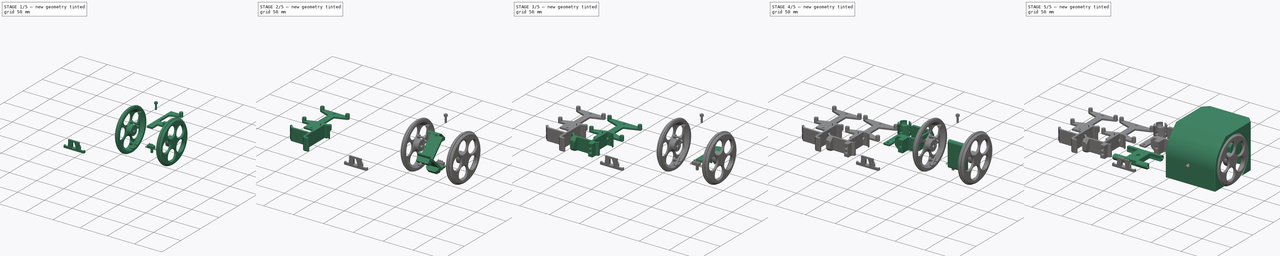
[diagram: build sequence overview — one tinted view per stage of 5, left to right]
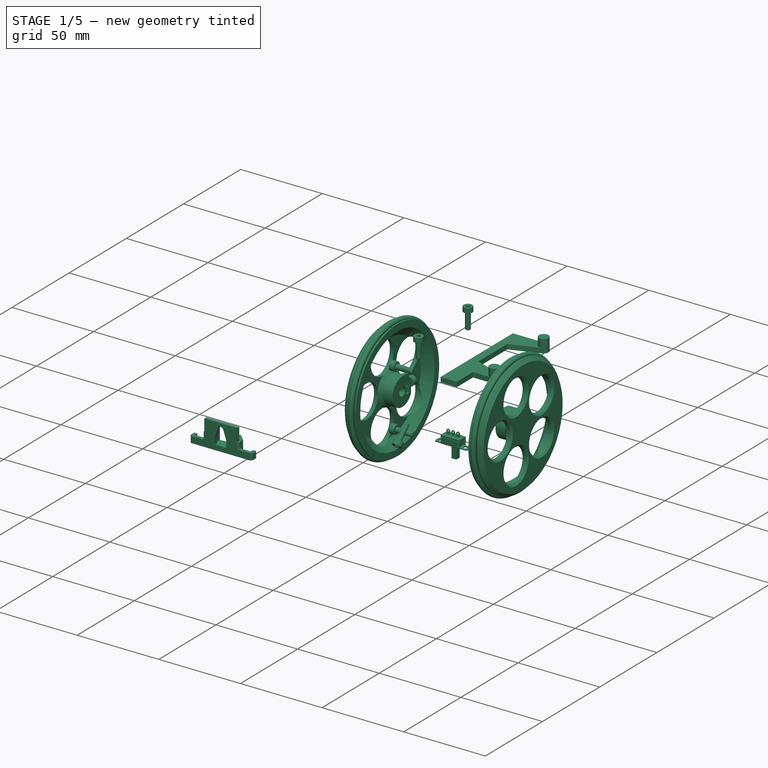
[diagram: stage 1 of 5 — iso view after this stage's code; geometry added in this stage tinted green]
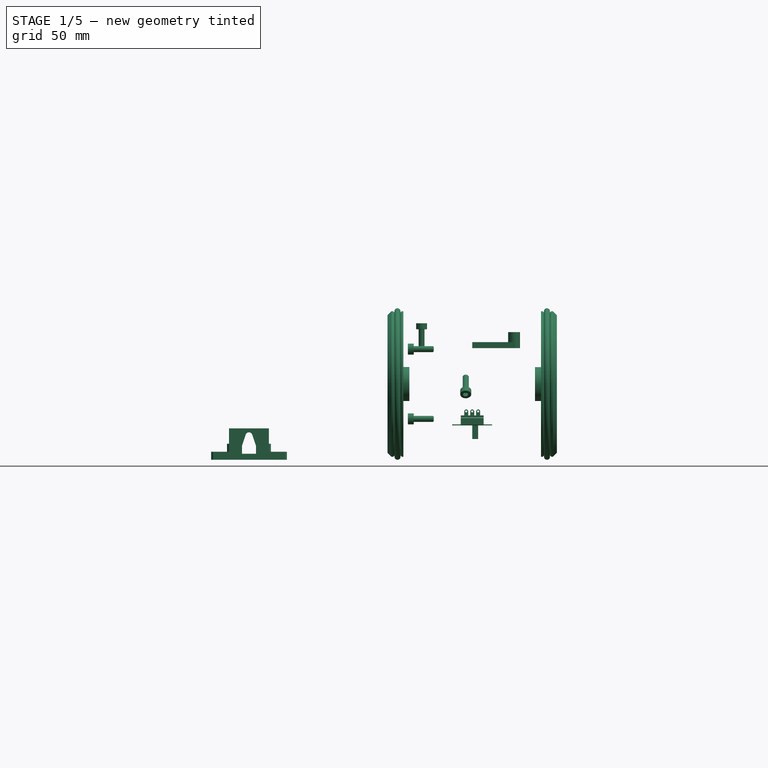
[diagram: stage 1 of 5 — front view after this stage's code; geometry added in this stage tinted green]
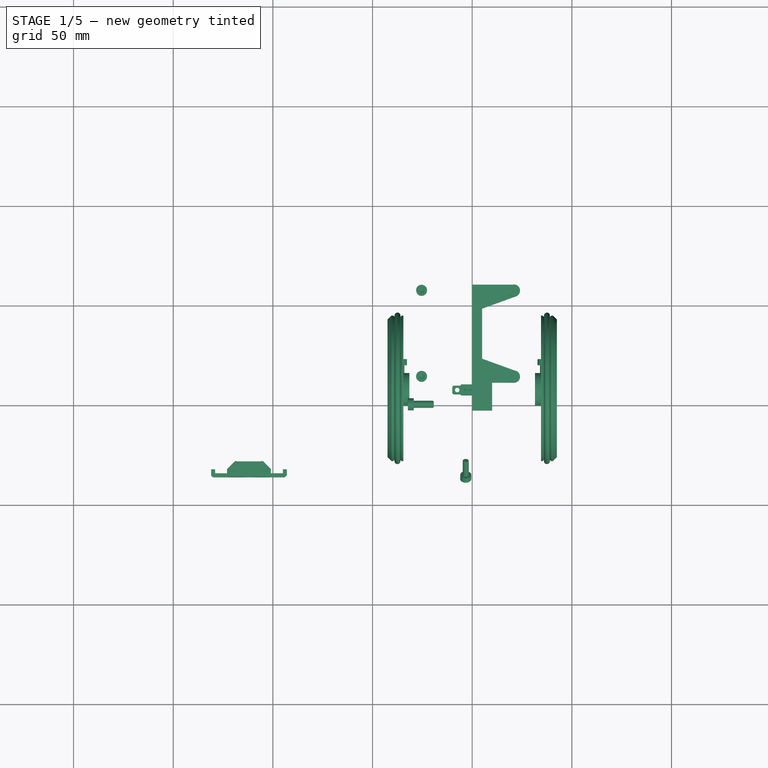
[diagram: stage 1 of 5 — top view after this stage's code; geometry added in this stage tinted green]
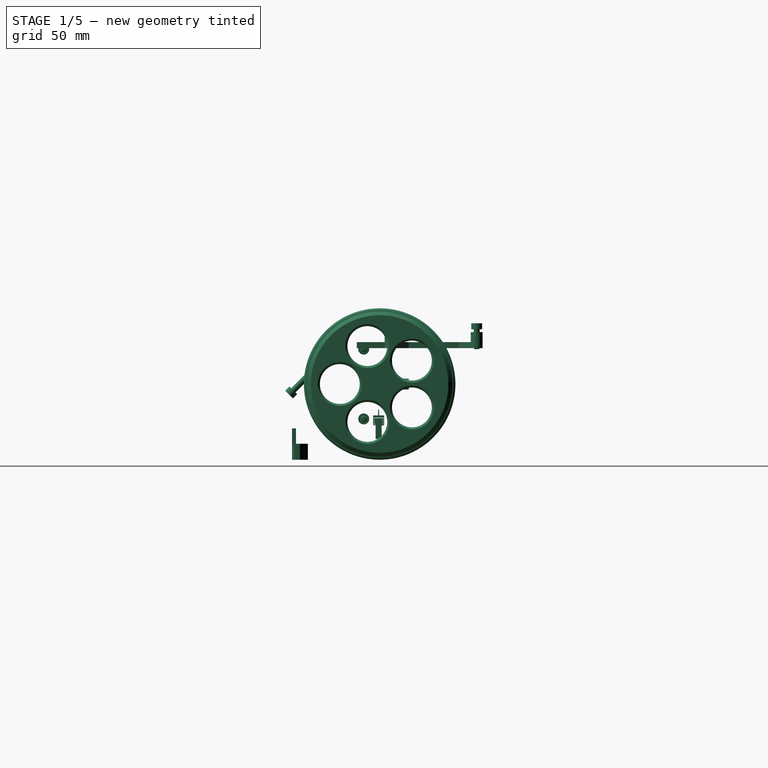
[diagram: stage 1 of 5 — right view after this stage's code; geometry added in this stage tinted green]
FCSTD DOCUMENT  (FreeCAD 0.14R3692 (Git))
Label: EscornabotNG
License: CC-BY 3.0
LicenseURL: http://creativecommons.org/licenses/by/3.0/
objects: Sketcher::SketchObject×38, Part::Feature×28, PartDesign::Pocket×26, Part::Chamfer×19, App::DocumentObjectGroup×14, PartDesign::Pad×12, Part::FeaturePython×10, Part::Mirroring×9, Part::MultiFuse×7, Part::Cylinder×7, PartDesign::Mirrored×5, Part::Cut×3, Part::Compound×3, PartDesign::Chamfer×3, Part::Box×2, Part::Fillet×2, Part::Sphere×1, PartDesign::PolarPattern×1, Part::Offset×1, Part::Thickness×1
note: 216 computed .brp shape members not serialized (recipe doc carries the construction recipe); baked Part::Feature solids carry a one-line shape summary decoded from their .brp

FEATURE [Part::Cylinder] Cylinder005  label="KeypadBracketScrewCylinder002"
  Angle = 360
  Height = 8
  Placement = pos=(21,13.5,18) rot=(0,0,1;0rad)
  Radius = 3
FEATURE [Sketcher::SketchObject] Sketch037  label="KeypadBracketSketch029"
  Placement = pos=(0,0,18) rot=(0,0,1;0rad)
  sketch-geometry (14):
    g0: LineSegment [constr] StartX=21 StartY=13.5 StartZ=0 EndX=-21 EndY=13.5 EndZ=0
    g1: LineSegment [constr] StartX=-21 StartY=13.5 StartZ=0 EndX=-21 EndY=56.68 EndZ=0
    g2: LineSegment [constr] StartX=-21 StartY=56.68 StartZ=0 EndX=21 EndY=56.68 EndZ=0
    g3: LineSegment [constr] StartX=21 StartY=56.68 StartZ=0 EndX=21 EndY=13.5 EndZ=0
    g4: LineSegment StartX=0 StartY=-3.5 StartZ=0 EndX=10 EndY=-3.5 EndZ=0
    g5: LineSegment StartX=10 StartY=-3.5 StartZ=0 EndX=10 EndY=10.5 EndZ=0
    g6: LineSegment StartX=10 StartY=10.5 StartZ=0 EndX=21 EndY=10.5 EndZ=0
    g7: ArcOfCircle CenterX=21 CenterY=13.5 CenterZ=0 NormalX=0 NormalY=0 NormalZ=1 Radius=3 StartAngle=4.71239 EndAngle=7.50492
    g8: LineSegment StartX=22.0261 StartY=16.3191 StartZ=0 EndX=5 EndY=22.5161 EndZ=0
    g9: LineSegment StartX=5 StartY=22.5161 StartZ=0 EndX=5 EndY=47.6639 EndZ=0
    g10: LineSegment StartX=5 StartY=47.6639 StartZ=0 EndX=22.0261 EndY=53.8609 EndZ=0
    g11: ArcOfCircle CenterX=21 CenterY=56.68 CenterZ=0 NormalX=0 NormalY=0 NormalZ=1 Radius=3 StartAngle=5.06145 EndAngle=7.85398
    g12: LineSegment StartX=21 StartY=59.68 StartZ=0 EndX=0 EndY=59.68 EndZ=0
    g13: LineSegment StartX=0 StartY=59.68 StartZ=0 EndX=0 EndY=-3.5 EndZ=0
  constraints (38):
    c: Coincident(g0,g1)
    c: Coincident(g1,g2)
    c: Coincident(g2,g3)
    c: Coincident(g3,g0)
    c: Horizontal(g0)
    c: Horizontal(g2)
    c: Vertical(g1)
    c: Vertical(g3)
    c: DistanceX(g0) = -42
    c: DistanceY(g3) = -43.18
    c: Symmetric(g0,g0,g-2)
    c: Coincident(g4,g5)
    c: Coincident(g5,g6)
    c: Tangent(g6,g7)
    c: Tangent(g7,g8)
    c: Coincident(g8,g9)
    c: Coincident(g9,g10)
    c: Tangent(g10,g11)
    c: Tangent(g11,g12)
    c: Coincident(g12,g13)
    c: Coincident(g13,g4)
    c: Coincident(g7,g0)
    c: Coincident(g11,g2)
    c: Equal(g11,g7)
    c: Vertical(g13)
    c: Vertical(g9)
    c: Vertical(g5)
    c: Horizontal(g4)
    c: Horizontal(g6)
    c: Horizontal(g12)
    c: PointOnObject(g4,g-2)
    c: DistanceY(g-1,g4) = -3.5
    c: DistanceY(g5) = 14
    c: DistanceX(g-1,g8) = 5
    c: Angle(g12,g10) = 0.349066
    c: Angle(g8,g6) = 0.349066
    c: Radius(g7) = 3
    c: DistanceX(g4) = 10
FEATURE [Part::Cylinder] Cylinder006  label="KeypadBracketScrewCylinder003"
  Angle = 360
  Height = 8
  Placement = pos=(21,56.68,18) rot=(0,0,1;0rad)
  Radius = 3
FEATURE [PartDesign::Pad] Pad011  label="KeypadBracketPad008"
  Length = 3
  Length2 = 100
  Placement = pos=(0,0,18) rot=(0,0,1;0rad)
  Sketch = -> Sketch037
  Type = 0
FEATURE [Part::Feature] Part__Feature010  label="StepMotor_28BYJ-48-right"
  Placement = pos=(-19.925,0,0) rot=(-0.57735,-0.57735,0.57735;2.0944rad)
  shape: bbox 28.55 x 44.13 x 42 mm, 425 faces (baked)
FEATURE [Part::Feature] Part__Feature011  label="BoltM3x10-001"
  Placement = pos=(0,1.5,0) rot=(1,0,0;1.5708rad)
  shape: bbox 5.5 x 13 x 5.5 mm, 16 faces (baked)
FEATURE [Part::Feature] Part__Feature012  label="BoltM3x10-002"
  Placement = pos=(29.3,0,17.5) rot=(0,1,0;1.5708rad)
  shape: bbox 13 x 5.5 x 5.5 mm, 16 faces (baked)
FEATURE [Part::Feature] Part__Feature013  label="BoltM3x10-003"
  Placement = pos=(29.3,0,-17.5) rot=(0,1,0;1.5708rad)
  shape: bbox 13 x 5.5 x 5.5 mm, 16 faces (baked)
FEATURE [Part::Mirroring] Part__Mirroring006  label="BoltM3x10-002 (Mirror #5)"
  Base = (0,0,0)
  Normal = (1,0,0)
  Source = -> Part__Feature012
FEATURE [Part::Mirroring] Part__Mirroring007  label="BoltM3x10-003 (Mirror #6)"
  Base = (0,0,0)
  Normal = (1,0,0)
  Source = -> Part__Feature013
FEATURE [Part::Feature] Part__Feature014  label="BoltM3x10-004"
  Placement = pos=(0,55.5,21) rot=(0,0,1;0rad)
  shape: bbox 5.5 x 5.5 x 13 mm, 16 faces (baked)
FEATURE [Part::Feature] Part__Feature016  label="BoltM3x10-005"
  Placement = pos=(0,0.5,24) rot=(0,0,1;0rad)
  shape: bbox 5.5 x 5.5 x 13 mm, 16 faces (baked)
FEATURE [Part::Feature] Part__Feature017  label="BoltM3x10-006"
  Placement = pos=(0,0.5,-23) rot=(0,1,0;3.14159rad)
  shape: bbox 5.5 x 5.5 x 13 mm, 16 faces (baked)
FEATURE [Part::Feature] Part__Feature018  label="BoltM3x10-007"
  Placement = pos=(0,16.5,-18) rot=(0,1,0;3.14159rad)
  shape: bbox 5.5 x 5.5 x 13 mm, 16 faces (baked)
FEATURE [Part::Feature] Part__Feature019  label="BoltM3x10-008"
  Placement = pos=(0,55.5,-18) rot=(0,1,0;3.14159rad)
  shape: bbox 5.5 x 5.5 x 13 mm, 16 faces (baked)
FEATURE [Part::Feature] Part__Feature020  label="BoltM3x10-009"
  Placement = pos=(25.4,56.68,27.5) rot=(0,0,1;0rad)
  shape: bbox 5.5 x 5.5 x 13 mm, 16 faces (baked)
FEATURE [Part::Feature] Part__Feature021  label="BoltM3x10-010"
  Placement = pos=(25.4,13.5,27.5) rot=(0,0,1;0rad)
  shape: bbox 5.5 x 5.5 x 13 mm, 16 faces (baked)
FEATURE [Part::Mirroring] Part__Mirroring008  label="BoltM3x10-009 (Mirror #7)"
  Base = (0,0,0)
  Normal = (1,0,0)
  Source = -> Part__Feature020
FEATURE [Part::Mirroring] Part__Mirroring009  label="BoltM3x10-010 (Mirror #8)"
  Base = (0,0,0)
  Normal = (1,0,0)
  Source = -> Part__Feature021
FEATURE [Part::Feature] Part__Feature022  label="BoltM3x10-011"
  Placement = pos=(3.25,-35.322,-3.1486) rot=(0.376211,0.856006,-0.354569;2.83242rad)
  shape: bbox 5.5 x 11.84 x 11.84 mm, 16 faces (baked)
FEATURE [Part::Mirroring] Part__Mirroring010  label="BoltM3x10-011 (Mirror #9)"
  Base = (0,0,0)
  Normal = (1,0,0)
  Source = -> Part__Feature022
FEATURE [App::DocumentObjectGroup] Group011  label="FastenersGroup011"
  Group = -> [Part__Feature011,Part__Mirroring006,Part__Mirroring007,Part__Feature014,Part__Feature016,Part__Feature017,Part__Feature018,Part__Feature019,Part__Mirroring008,Part__Mirroring009,Part__Mirroring010]
FEATURE [Part::Feature] Part__Feature023  label="WheelBoltM3x10-001"
  shape: bbox 5.5 x 13 x 5.5 mm, 16 faces (baked)
FEATURE [Part::Feature] Part__Feature024  label="WheelNutM3-001"
  shape: bbox 6.35 x 2.4 x 6.35 mm, 29 faces (baked)
FEATURE [Part::Feature] Part__Feature025  label="Wheel001"
  shape: bbox 73 x 73 x 11 mm, 42 faces (baked)
FEATURE [Part::Feature] Part__Feature026  label="Oring-Torus001"
  shape: bbox 82.26 x 82.26 x 3 mm, 1 faces (baked)
FEATURE [Part::Feature] Part__Feature027  label="WheelNutM3-002"
  shape: bbox 6.35 x 2.4 x 6.35 mm, 29 faces (baked)
FEATURE [Part::Feature] Part__Feature028  label="WheelBoltM3x10-002"
  shape: bbox 5.5 x 13 x 5.5 mm, 16 faces (baked)
FEATURE [Part::Feature] Part__Feature029  label="Wheel002"
  shape: bbox 73 x 73 x 11 mm, 42 faces (baked)
FEATURE [Part::Feature] Part__Feature030  label="Oring-Torus002"
  shape: bbox 82.26 x 82.26 x 3 mm, 1 faces (baked)
FEATURE [Part::Compound] Compound002  label="Wheel-Left"
  Links = -> [Part__Feature023,Part__Feature024,Part__Feature025,Part__Feature026]
  Placement = pos=(37.5,8,0) rot=(0,1,0;1.5708rad)
FEATURE [Part::Compound] Compound  label="Wheel-Right"
  Links = -> [Part__Feature028,Part__Feature027,Part__Feature029,Part__Feature030]
  Placement = pos=(-37.5,8,0) rot=(0,-1,0;1.5708rad)
FEATURE [Sketcher::SketchObject] Sketch041  label="SwitchHolderSketch041"
  Placement = pos=(0,0,0) rot=(0.57735,0.57735,0.57735;2.0944rad)
  sketch-geometry (8):
    g0: LineSegment StartX=-3.25 StartY=-21 StartZ=0 EndX=-3.25 EndY=-23 EndZ=0
    g1: LineSegment StartX=-3.25 StartY=-23 StartZ=0 EndX=12.5 EndY=-23 EndZ=0
    g2: LineSegment StartX=12.5 StartY=-23 StartZ=0 EndX=12.5 EndY=-15 EndZ=0
    g3: LineSegment StartX=12.5 StartY=-15 StartZ=0 EndX=4.5 EndY=-15 EndZ=0
    g4: LineSegment StartX=4.5 StartY=-15 StartZ=0 EndX=4.5 EndY=-20 EndZ=0
    g5: LineSegment StartX=4.5 StartY=-20 StartZ=0 EndX=10 EndY=-20 EndZ=0
    g6: LineSegment StartX=10 StartY=-20 StartZ=0 EndX=10 EndY=-21 EndZ=0
    g7: LineSegment StartX=10 StartY=-21 StartZ=0 EndX=-3.25 EndY=-21 EndZ=0
  constraints (24):
    c: Vertical(g0)
    c: Coincident(g0,g1)
    c: Horizontal(g1)
    c: Coincident(g1,g2)
    c: Vertical(g2)
    c: Coincident(g2,g3)
    c: Horizontal(g3)
    c: Coincident(g3,g4)
    c: Vertical(g4)
    c: Coincident(g4,g5)
    c: Horizontal(g5)
    c: Coincident(g5,g6)
    c: Vertical(g6)
    c: Coincident(g6,g7)
    c: Coincident(g7,g0)
    c: Horizontal(g7)
    c: DistanceX(g3) = -8
    c: DistanceY(g0) = -2
    c: DistanceX(g-1,g0) = -3.25
    c: DistanceX(g7) = -13.25
    c: DistanceX(g5) = 5.5
    c: DistanceY(g2) = 8
    c: DistanceY(g6) = -1
    c: DistanceY(g-1,g0) = -21
FEATURE [PartDesign::Pad] Pad012  label="SwitchHolderPad012"
  Length = 20
  Length2 = 100
  Midplane = true
  Placement = pos=(0,0,0) rot=(0.57735,0.57735,0.57735;2.0944rad)
  Sketch = -> Sketch041
  Type = 0
FEATURE [Sketcher::SketchObject] Sketch042  label="SwitchHolderRetainSketch042"
  Placement = pos=(0,0,-23) rot=(0.707107,0.707107,0;3.14159rad)
  Support = -> Pad012 [Face2]
  sketch-geometry (4):
    g0: LineSegment StartX=4.5 StartY=11 StartZ=0 EndX=12.5 EndY=11 EndZ=0
    g1: LineSegment StartX=12.5 StartY=11 StartZ=0 EndX=12.5 EndY=9.875 EndZ=0
    g2: LineSegment StartX=12.5 StartY=9.875 StartZ=0 EndX=4.5 EndY=9.875 EndZ=0
    g3: LineSegment StartX=4.5 StartY=9.875 StartZ=0 EndX=4.5 EndY=11 EndZ=0
  constraints (12):
    c: Coincident(g0,g1)
    c: Coincident(g1,g2)
    c: Coincident(g2,g3)
    c: Coincident(g3,g0)
    c: Horizontal(g0)
    c: Horizontal(g2)
    c: Vertical(g1)
    c: Vertical(g3)
    c: DistanceY(g1) = -1.125
    c: DistanceX(g-1,g2) = 4.5
    c: DistanceY(g-1,g2) = 9.875
    c: DistanceX(g2) = -8
FEATURE [PartDesign::Pad] Pad013  label="SwitchHolderRetainPad013"
  Length = 8
  Length2 = 100
  Placement = pos=(0,0,0) rot=(0.57735,0.57735,0.57735;2.0944rad)
  Reversed = true
  Sketch = -> Sketch042
  Type = 0
FEATURE [PartDesign::Mirrored] Mirrored003  label="SwitchHolderRetainMirrored003"
  MirrorPlane = -> Sketch042 [H_Axis]
  Originals = -> [Pad013]
  Placement = pos=(0,0,0) rot=(0.57735,0.57735,0.57735;2.0944rad)
FEATURE [Sketcher::SketchObject] Sketch043  label="SwitchHolderGapSketch043"
  Placement = pos=(0,4.5,0) rot=(0.57735,0.57735,-0.57735;2.0944rad)
  Support = -> Mirrored003 [Face12]
  sketch-geometry (4):
    g0: LineSegment StartX=14.5 StartY=6 StartZ=0 EndX=20.5 EndY=6 EndZ=0
    g1: LineSegment StartX=20.5 StartY=6 StartZ=0 EndX=20.5 EndY=-6 EndZ=0
    g2: LineSegment StartX=20.5 StartY=-6 StartZ=0 EndX=14.5 EndY=-6 EndZ=0
    g3: LineSegment StartX=14.5 StartY=-6 StartZ=0 EndX=14.5 EndY=6 EndZ=0
  constraints (12):
    c: Coincident(g0,g1)
    c: Coincident(g1,g2)
    c: Coincident(g2,g3)
    c: Coincident(g3,g0)
    c: Horizontal(g0)
    c: Horizontal(g2)
    c: Vertical(g1)
    c: Vertical(g3)
    c: DistanceY(g3) = 12
    c: Symmetric(g2,g0,g-1)
    c: DistanceX(g2) = -6
    c: DistanceX(g-1,g2) = 14.5
FEATURE [PartDesign::Pocket] Pocket028  label="SwitchHolderGapPocket028"
  Length = 6
  Placement = pos=(0,0,0) rot=(0.57735,0.57735,0.57735;2.0944rad)
  Sketch = -> Sketch043
  Type = 0
FEATURE [Sketcher::SketchObject] Sketch044  label="SwitchHolderHoleSketch044"
  Placement = pos=(0,0,-23) rot=(0.707107,0.707107,0;3.14159rad)
  Support = -> Pocket028 [Face3]
  sketch-geometry (6):
    g0: LineSegment StartX=5.5 StartY=3.5 StartZ=0 EndX=9.5 EndY=3.5 EndZ=0
    g1: LineSegment StartX=9.5 StartY=3.5 StartZ=0 EndX=9.5 EndY=-3.5 EndZ=0
    g2: LineSegment StartX=9.5 StartY=-3.5 StartZ=0 EndX=5.5 EndY=-3.5 EndZ=0
    g3: ArcOfCircle CenterX=0.5 CenterY=0 CenterZ=0 NormalX=0 NormalY=0 NormalZ=1 Radius=1.75 StartAngle=1.89071 EndAngle=4.39249
    g4: LineSegment StartX=5.5 StartY=3.5 StartZ=0 EndX=-0.050345 EndY=1.66121 EndZ=0
    g5: LineSegment StartX=5.5 StartY=-3.5 StartZ=0 EndX=-0.0503311 EndY=-1.66122 EndZ=0
  constraints (19):
    c: Coincident(g0,g1)
    c: Coincident(g1,g2)
    c: Horizontal(g0)
    c: Horizontal(g2)
    c: Vertical(g1)
    c: PointOnObject(g3,g-1)
    c: DistanceX(g-1,g3) = 0.5
    c: Radius(g3) = 1.75
    c: DistanceY(g1) = -7
    c: Symmetric(g0,g1,g-1)
    c: DistanceX(g2) = -4
    c: DistanceX(g-1,g2) = 5.5
    c: Coincident(g4,g0)
    c: Coincident(g5,g2)
    c: Coincident(g4,g3)
    c: Coincident(g5,g3)
    c: Tangent(g3,g5)
    c: Tangent(g3,g4)
    c: Equal(g0,g2)
FEATURE [PartDesign::Pocket] Pocket029  label="SwitchHolderHolePocket029"
  Length = 5
  Placement = pos=(0,0,0) rot=(0.57735,0.57735,0.57735;2.0944rad)
  Sketch = -> Sketch044
  Type = 0
FEATURE [PartDesign::Chamfer] Chamfer027  label="SwitchHolderOutChamfer027"
  Base = -> Pocket029 [Edge30,Edge27]
  Placement = pos=(0,0,0) rot=(0.57735,0.57735,0.57735;2.0944rad)
  Size = 1
FEATURE [PartDesign::Chamfer] Chamfer028  label="SwitchHolderInChamfer028"
  Base = -> Chamfer027 [Edge46,Edge42]
  Placement = pos=(0,0,0) rot=(0.57735,0.57735,0.57735;2.0944rad)
  Size = 4
FEATURE [Sketcher::SketchObject] Sketch045  label="SwitchHolderCableSketch045"
  Placement = pos=(0,12.5,0) rot=(0.57735,0.57735,0.57735;4.18879rad)
  Support = -> Chamfer028 [Face1]
  sketch-geometry (6):
    g0: LineSegment StartX=-23 StartY=9 StartZ=0 EndX=-21 EndY=9 EndZ=0
    g1: LineSegment StartX=-21 StartY=9 StartZ=0 EndX=-21 EndY=17 EndZ=0
    g2: LineSegment StartX=-23 StartY=19 StartZ=0 EndX=-23 EndY=9 EndZ=0
    g3: LineSegment StartX=-23 StartY=19 StartZ=0 EndX=-19 EndY=19 EndZ=0
    g4: LineSegment StartX=-19 StartY=19 StartZ=0 EndX=-19 EndY=17 EndZ=0
    g5: LineSegment StartX=-19 StartY=17 StartZ=0 EndX=-21 EndY=17 EndZ=0
  constraints (18):
    c: Coincident(g0,g1)
    c: Coincident(g2,g0)
    c: Horizontal(g0)
    c: Vertical(g1)
    c: Vertical(g2)
    c: DistanceY(g-1,g0) = 9
    c: DistanceY(g2) = -10
    c: DistanceX(g0) = 2
    c: DistanceX(g-1,g0) = -23
    c: Coincident(g2,g3)
    c: Horizontal(g3)
    c: Coincident(g3,g4)
    c: Vertical(g4)
    c: Coincident(g4,g5)
    c: Coincident(g1,g5)
    c: Horizontal(g5)
    c: DistanceY(g4) = -2
    c: DistanceX(g5) = -2
FEATURE [PartDesign::Pad] Pad014  label="SwitchHolderCablePad014"
  Length = 4
  Length2 = 100
  Placement = pos=(0,0,0) rot=(0.57735,0.57735,0.57735;2.0944rad)
  Reversed = true
  Sketch = -> Sketch045
  Type = 0
FEATURE [PartDesign::Mirrored] Mirrored004  label="SwitchHolderCableMirrored004"
  MirrorPlane = -> Sketch045 [H_Axis]
  Originals = -> [Pad014]
  Placement = pos=(0,0,0) rot=(0.57735,0.57735,0.57735;2.0944rad)
FEATURE [PartDesign::Chamfer] Chamfer029  label="SwitchHolderCableChamfer029-Final"
  Base = -> Mirrored004 [Edge92,Edge66]
  Placement = pos=(0,0,0) rot=(0.57735,0.57735,0.57735;2.0944rad)
  Size = 1
FEATURE [App::DocumentObjectGroup] Group013  label="Addon-SwitchHolderGroup013"
  Group = -> [Pad012,Pad013,Mirrored003,Pocket028,Pocket029,Chamfer027,Chamfer028,Pad014,Mirrored004,Chamfer029]
FEATURE [App::DocumentObjectGroup] Group004  label="AddonsGroup004"
  Group = -> [Group005,Group006,Group007,Group009,Group010,Group013]
FEATURE [Part::FeaturePython] Clone009  label="Clone of SwitchHolderCableChamfer029-Final"  # Draft clone (typed FeaturePython)
  Objects = -> [Chamfer029]
  Placement = pos=(-112,-13,-25.5) rot=(0,1,0;1.5708rad)
  Scale = (1,1,1)
FEATURE [App::DocumentObjectGroup] Group008  label="PrintingPlateGroup008"
  Group = -> [Clone002,Clone003,Clone004,Clone005,Clone006,Clone007,Clone008,Clone009]
FEATURE [Part::Feature] Part__Feature034  label="SlideSwitchFusion"
  shape: bbox 11.5 x 5.5 x 4.125 mm, 24 faces (baked)
FEATURE [Part::Feature] Part__Feature035  label="SlideSwitchFusion001"
  shape: bbox 7 x 4.25 x 10.5 mm, 11 faces (baked)
FEATURE [Part::Feature] Part__Feature036  label="SlideSwitchFusion002"
  shape: bbox 20 x 5.5 x 3.75 mm, 30 faces (baked)
FEATURE [Part::Compound] Compound004  label="SlideSwitch"
  Links = -> [Part__Feature034,Part__Feature036,Part__Feature035]
  Placement = pos=(0,7.5,-17) rot=(1,0,0;3.14159rad)
FEATURE [App::DocumentObjectGroup] Group012  label="ComponentsGroup012"
  Group = -> [Part__Feature010,Part__Feature,Compound004]
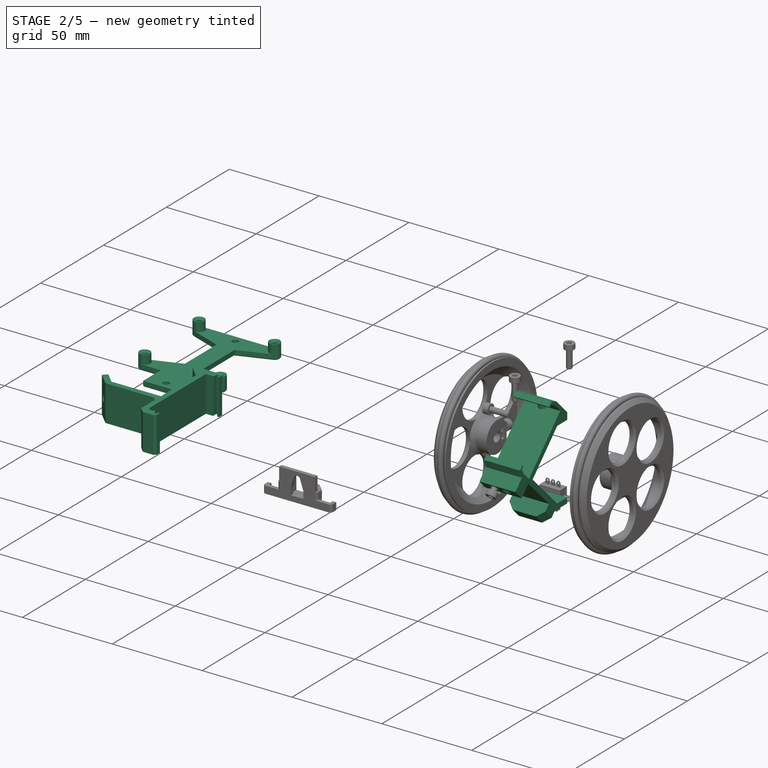
[diagram: stage 2 of 5 — iso view after this stage's code; geometry added in this stage tinted green]
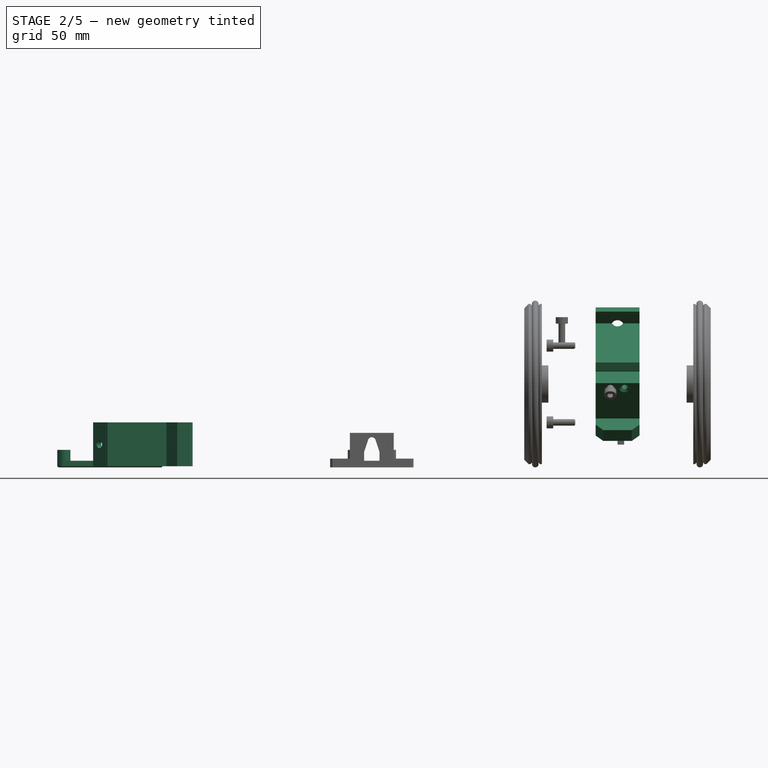
[diagram: stage 2 of 5 — front view after this stage's code; geometry added in this stage tinted green]
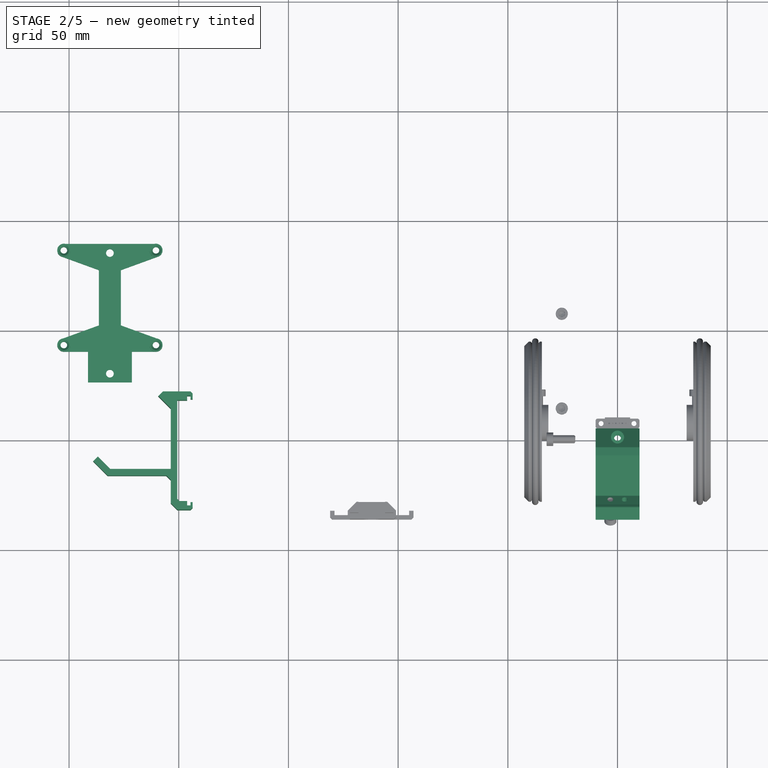
[diagram: stage 2 of 5 — top view after this stage's code; geometry added in this stage tinted green]
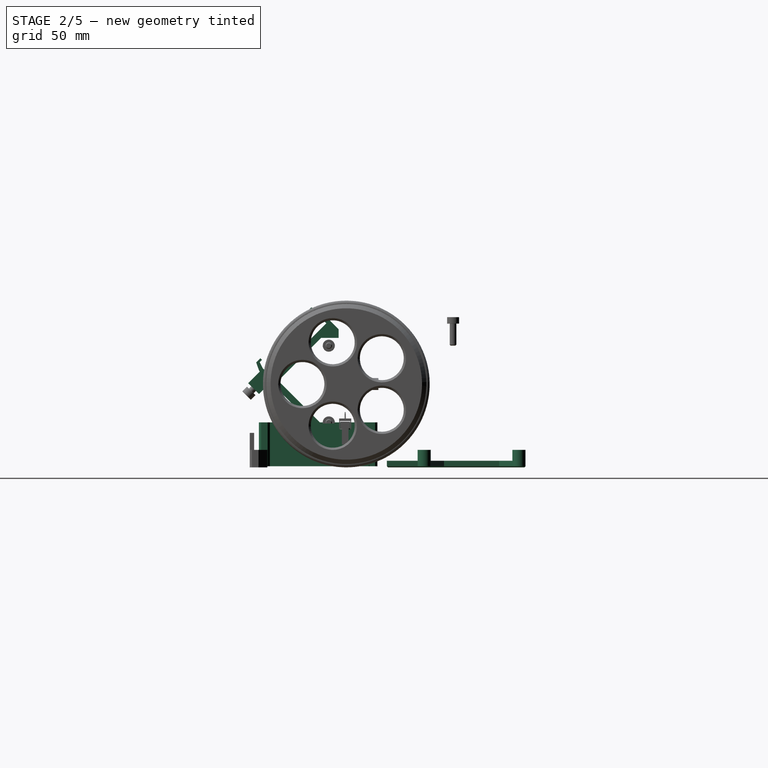
[diagram: stage 2 of 5 — right view after this stage's code; geometry added in this stage tinted green]
FEATURE [Part::Feature] Part__Feature006  label="KeypadBoardHolesPocket"
  Placement = pos=(0,35.09,26) rot=(0,0,1;0rad)
  shape: bbox 58.42 x 50.8 x 1.5 mm, 10 faces (baked)
FEATURE [Part::Feature] Part__Feature007  label="Board_ArduinoProMini"
  Placement = pos=(22.75,-13.4541,15.2886) rot=(0.357407,-0.357407,0.862856;1.71777rad)
  shape: bbox 45.5 x 30.05 x 30.05 mm, 34 faces (baked)
FEATURE [Sketcher::SketchObject] Sketch031  label="BoardBracketSketch031"
  Placement = pos=(0,0,0) rot=(0.57735,0.57735,0.57735;2.0944rad)
  sketch-geometry (22):
    g0: LineSegment StartX=4.5 StartY=21 StartZ=0 EndX=4.5 EndY=24.9117 EndZ=0
    g1: LineSegment StartX=4.5 StartY=24.9117 StartZ=0 EndX=-4.23971 EndY=33.6514 EndZ=0
    g2: LineSegment StartX=-4.23971 StartY=33.6514 StartZ=0 EndX=-7.97553 EndY=34.9092 EndZ=0
    g3: LineSegment StartX=-7.97553 StartY=34.9092 StartZ=0 EndX=-9.91852 EndY=32.9663 EndZ=0
    g4: LineSegment StartX=-9.91852 StartY=32.9663 StartZ=0 EndX=-9.21142 EndY=32.2591 EndZ=0
    g5: LineSegment StartX=-9.21142 StartY=32.2591 StartZ=0 EndX=-8.15076 EndY=33.3198 EndZ=0
    g6: LineSegment StartX=-8.15076 StartY=33.3198 StartZ=0 EndX=-5.32233 EndY=31.9056 EndZ=0
    g7: LineSegment StartX=-5.32233 StartY=31.9056 StartZ=0 EndX=-1.07969 EndY=27.663 EndZ=0
    g8: LineSegment StartX=-1.07969 StartY=27.663 StartZ=0 EndX=-25.8284 EndY=2.91421 EndZ=0
    g9: LineSegment StartX=-25.8284 StartY=2.91421 StartZ=0 EndX=-30.0711 EndY=7.15685 EndZ=0
    g10: LineSegment StartX=-30.0711 StartY=7.15685 StartZ=0 EndX=-31.4853 EndY=9.98528 EndZ=0
    g11: LineSegment StartX=-31.4853 StartY=9.98528 StartZ=0 EndX=-30.4246 EndY=11.0459 EndZ=0
    g12: LineSegment StartX=-30.4246 StartY=11.0459 StartZ=0 EndX=-31.1317 EndY=11.753 EndZ=0
    g13: LineSegment StartX=-31.1317 StartY=11.753 StartZ=0 EndX=-33.0747 EndY=9.81006 EndZ=0
    g14: LineSegment StartX=-33.0747 StartY=9.81006 StartZ=0 EndX=-31.7148 EndY=5.97214 EndZ=0
    g15: LineSegment StartX=-31.7148 StartY=5.97214 StartZ=0 EndX=-4.74264 EndY=-21 EndZ=0
    g16: LineSegment StartX=-4.74264 StartY=-21 StartZ=0 EndX=4.5 EndY=-21 EndZ=0
    g17: LineSegment StartX=4.5 StartY=-21 StartZ=0 EndX=4.5 EndY=-18 EndZ=0
    g18: LineSegment StartX=4.5 StartY=-18 StartZ=0 EndX=-3.5 EndY=-18 EndZ=0
    g19: LineSegment StartX=-3.5 StartY=-18 StartZ=0 EndX=-23 EndY=1.5 EndZ=0
    g20: LineSegment StartX=-23 StartY=1.5 StartZ=0 EndX=-3.5 EndY=21 EndZ=0
    g21: LineSegment StartX=-3.5 StartY=21 StartZ=0 EndX=4.5 EndY=21 EndZ=0
  constraints (66):
    c: Coincident(g0,g1)
    c: Coincident(g1,g2)
    c: Coincident(g2,g3)
    c: Coincident(g3,g4)
    c: Coincident(g4,g5)
    c: Coincident(g5,g6)
    c: Coincident(g6,g7)
    c: Coincident(g7,g8)
    c: Coincident(g8,g9)
    c: Coincident(g9,g10)
    c: Coincident(g10,g11)
    c: Coincident(g11,g12)
    c: Coincident(g12,g13)
    c: Coincident(g13,g14)
    c: Coincident(g14,g15)
    c: Coincident(g15,g16)
    c: Coincident(g16,g17)
    c: Coincident(g17,g18)
    c: Coincident(g18,g19)
    c: Coincident(g19,g20)
    c: Coincident(g20,g21)
    c: Coincident(g21,g0)
    c: Horizontal(g21)
    c: Horizontal(g18)
    c: Horizontal(g16)
    c: Vertical(g0)
    c: Vertical(g17)
    c: DistanceX(g21) = 8
    c: DistanceX(g-1,g0) = 4.5
    c: DistanceY(g-1,g0) = 21
    c: DistanceX(g18) = -8
    c: DistanceX(g-1,g17) = 4.5
    c: DistanceY(g-1,g17) = -18
    c: DistanceY(g17) = 3
    c: Angle(g20,g21) = 2.35619
    c: Perpendicular(g20,g19)
    c: Parallel(g15,g19)
    c: Distance(g18,g15) = 3
    c: Parallel(g8,g20)
    c: Distance(g8) = 35
    c: Perpendicular(g8,g7)
    c: Parallel(g7,g1)
    c: Perpendicular(g9,g8)
    c: Distance(g19,g8) = 3
    c: Distance(g8,g15) = 2
    c: Distance(g7,g1) = 2
    c: Distance(g7) = 6
    c: Distance(g9) = 6
    c: Distance(g10,g8) = 9
    c: Distance(g5,g8) = 9
    c: Distance(g5,g10) = 33
    c: Equal(g10,g6)
    c: Parallel(g5,g8)
    c: Parallel(g11,g8)
    c: Distance(g5) = 1.5
    c: Perpendicular(g4,g5)
    c: Perpendicular(g12,g11)
    c: Equal(g5,g11)
    c: Equal(g12,g4)
    c: Distance(g4) = 1
    c: Parallel(g3,g5)
    c: Parallel(g13,g11)
    c: Distance(g6,g2) = 2
    c: Distance(g2,g6) = 1.5
    c: Distance(g13,g10) = 1.5
    c: Distance(g14,g10) = 2
FEATURE [PartDesign::Pad] Pad008  label="BoardBracketPad008"
  Length = 20
  Length2 = 100
  Midplane = true
  Placement = pos=(0,0,0) rot=(0.57735,0.57735,0.57735;2.0944rad)
  Sketch = -> Sketch031
  Type = 0
FEATURE [Sketcher::SketchObject] Sketch032  label="BoardBracketScrewHoleSketch032"
  Placement = pos=(0,0,-21) rot=(0.707107,0.707107,0;3.14159rad)
  Support = -> Pad008 [Face17]
  sketch-geometry (1):
    g0: Circle CenterX=0.5 CenterY=0 CenterZ=0 NormalX=0 NormalY=0 NormalZ=1 Radius=1.625
  constraints (3):
    c: PointOnObject(g0,g-1)
    c: DistanceX(g-1,g0) = 0.5
    c: Radius(g0) = 1.625
FEATURE [PartDesign::Pocket] Pocket023  label="BoardBracketScrewHolePocket023"
  Length = 5
  Placement = pos=(0,0,0) rot=(0.57735,0.57735,0.57735;2.0944rad)
  Sketch = -> Sketch032
  Type = 1
FEATURE [Part::Cylinder] Cylinder003  label="BoardBracketScrewHeadCylinder"
  Angle = 360
  Height = 10
  Placement = pos=(0,0.5,24) rot=(0,0,1;0rad)
  Radius = 3
FEATURE [Part::Cut] Cut001  label="BoardBracketScrewHeadCut001"
  Base = -> Pocket023
  Tool = -> Cylinder003
FEATURE [Part::Feature] Part__Feature008  label="DriverBoard_ULN2003-right"
  Placement = pos=(-16.425,-23.5663,-12.7829) rot=(0.678598,-0.678598,0.281085;2.59356rad)
  shape: bbox 31.5 x 25.88 x 26.07 mm, 54 faces (baked)
FEATURE [Part::Feature] Part__Feature009  label="DriverBoard_ULN2003-left"
  Placement = pos=(16.425,-23.5663,-12.7829) rot=(0.678598,-0.678598,0.281085;2.59356rad)
  shape: bbox 31.5 x 25.88 x 26.07 mm, 54 faces (baked)
FEATURE [Sketcher::SketchObject] Sketch033  label="BoardBracketDriverSketch033"
  Placement = pos=(0,-12.8713,-12.8713) rot=(1,0,0;2.35619rad)
  Support = -> Cut001 [Face22]
  sketch-geometry (8):
    g0: LineSegment StartX=-10 StartY=26.25 StartZ=0 EndX=10 EndY=26.25 EndZ=0
    g1: LineSegment StartX=10 StartY=26.25 StartZ=0 EndX=10 EndY=19.25 EndZ=0
    g2: LineSegment StartX=10 StartY=19.25 StartZ=0 EndX=-10 EndY=19.25 EndZ=0
    g3: LineSegment StartX=-10 StartY=19.25 StartZ=0 EndX=-10 EndY=26.25 EndZ=0
    g4: LineSegment StartX=-10 StartY=-4 StartZ=0 EndX=10 EndY=-4 EndZ=0
    g5: LineSegment StartX=10 StartY=-4 StartZ=0 EndX=10 EndY=-11 EndZ=0
    g6: LineSegment StartX=10 StartY=-11 StartZ=0 EndX=-10 EndY=-11 EndZ=0
    g7: LineSegment StartX=-10 StartY=-11 StartZ=0 EndX=-10 EndY=-4 EndZ=0
  constraints (24):
    c: Coincident(g0,g1)
    c: Coincident(g1,g2)
    c: Coincident(g2,g3)
    c: Coincident(g3,g0)
    c: Horizontal(g0)
    c: Horizontal(g2)
    c: Vertical(g1)
    c: Vertical(g3)
    c: DistanceY(g1) = -7
    c: DistanceX(g2) = -20
    c: Symmetric(g0,g0,g-2)
    c: Coincident(g4,g5)
    c: Coincident(g5,g6)
    c: Coincident(g6,g7)
    c: Coincident(g7,g4)
    c: Horizontal(g4)
    c: Horizontal(g6)
    c: Vertical(g5)
    c: Vertical(g7)
    c: Equal(g2,g6)
    c: Equal(g5,g1)
    c: Symmetric(g5,g6,g-2)
    c: DistanceY(g6,g2) = 30.25
    c: DistanceY(g-1,g4) = -4
FEATURE [PartDesign::Pad] Pad009  label="BoardBracketDriversPad009"
  Length = 7.5
  Length2 = 100
  Sketch = -> Sketch033
  Type = 0
FEATURE [Sketcher::SketchObject] Sketch034  label="BoardBracketDriverScrewHolesSketch034"
  Placement = pos=(0,-18.1746,-18.1746) rot=(1,0,0;2.35619rad)
  Support = -> Pad009 [Face33]
  sketch-geometry (2):
    g0: LineSegment [constr] StartX=3.25 StartY=22.75 StartZ=0 EndX=3.25 EndY=-7.5 EndZ=0
    g1: Circle CenterX=3.25 CenterY=22.75 CenterZ=0 NormalX=0 NormalY=0 NormalZ=1 Radius=1.375
  constraints (6):
    c: Vertical(g0)
    c: DistanceY(g-1,g0) = -7.5
    c: DistanceY(g0) = -30.25
    c: Coincident(g0,g1)
    c: DistanceX(g-1,g0) = 3.25
    c: Radius(g1) = 1.375
FEATURE [PartDesign::Pocket] Pocket024  label="BoardBracketDriverScrewHolesPocket024"
  Length = 12
  Sketch = -> Sketch034
  Type = 0
FEATURE [PartDesign::Mirrored] Mirrored002  label="BoardBracketDriverScrewHolesMirrored002"
  MirrorPlane = -> Sketch034 [V_Axis]
  Originals = -> [Pocket024]
FEATURE [Part::Chamfer] Chamfer020  label="BoardBracketDriverChamfer020"
  Base = -> Mirrored002
  Edges = 4 edges: [Edge14 r=3.5,Edge36 r=3.5,Edge80 r=1,Edge82 r=1]
FEATURE [Sketcher::SketchObject] Sketch035  label="EscornaCPUBracketSketch032"
  Placement = pos=(0,0,0) rot=(0.57735,0.57735,0.57735;2.0944rad)
  sketch-geometry (28):
    g0: LineSegment StartX=4.5 StartY=21 StartZ=0 EndX=4.5 EndY=24 EndZ=0
    g1: LineSegment StartX=4.5 StartY=24 StartZ=0 EndX=-0.12132 EndY=28.6213 EndZ=0
    g2: LineSegment StartX=-6.13173 StartY=28.9749 StartZ=0 EndX=-2.94975 EndY=25.7929 EndZ=0
    g3: LineSegment StartX=-2.94975 StartY=25.7929 StartZ=0 EndX=-35.4767 EndY=-6.73402 EndZ=0
    g4: LineSegment StartX=-35.4767 StartY=-6.73402 StartZ=0 EndX=-38.6586 EndY=-3.55204 EndZ=0
    g5: LineSegment StartX=-25.1213 StartY=-0.62132 StartZ=0 EndX=-4.74264 EndY=-21 EndZ=0
    g6: LineSegment StartX=-4.74264 StartY=-21 StartZ=0 EndX=4.5 EndY=-21 EndZ=0
    g7: LineSegment StartX=4.5 StartY=-21 StartZ=0 EndX=4.5 EndY=-18 EndZ=0
    g8: LineSegment StartX=4.5 StartY=-18 StartZ=0 EndX=-3.5 EndY=-18 EndZ=0
    g9: LineSegment StartX=-3.5 StartY=-18 StartZ=0 EndX=-23 EndY=1.5 EndZ=0
    g10: LineSegment StartX=-23 StartY=1.5 StartZ=0 EndX=-3.5 EndY=21 EndZ=0
    g11: LineSegment StartX=-3.5 StartY=21 StartZ=0 EndX=4.5 EndY=21 EndZ=0
    g12: LineSegment StartX=-6.13173 StartY=28.9749 StartZ=0 EndX=-4.71751 EndY=30.3891 EndZ=0
    g13: LineSegment StartX=-4.71751 StartY=30.3891 StartZ=0 EndX=-5.77817 EndY=31.4497 EndZ=0
    g14: LineSegment StartX=-5.77817 StartY=31.4497 StartZ=0 EndX=-6.83883 EndY=30.3891 EndZ=0
    g15: LineSegment StartX=-6.83883 StartY=30.3891 StartZ=0 EndX=-7.54594 EndY=31.0962 EndZ=0
    g16: LineSegment StartX=-7.54594 StartY=31.0962 StartZ=0 EndX=-5.07107 EndY=33.5711 EndZ=0
    g17: LineSegment StartX=-5.07107 StartY=33.5711 StartZ=0 EndX=-0.12132 EndY=28.6213 EndZ=0
    g18: LineSegment StartX=-38.6586 StartY=-3.55204 StartZ=0 EndX=-40.0729 EndY=-4.96625 EndZ=0
    g19: LineSegment StartX=-40.0729 StartY=-4.96625 StartZ=0 EndX=-41.1335 EndY=-3.90559 EndZ=0
    g20: LineSegment StartX=-41.1335 StartY=-3.90559 StartZ=0 EndX=-40.0729 EndY=-2.84493 EndZ=0
    g21: LineSegment StartX=-40.0729 StartY=-2.84493 StartZ=0 EndX=-40.78 EndY=-2.13782 EndZ=0
    g22: LineSegment StartX=-40.78 StartY=-2.13782 StartZ=0 EndX=-43.2548 EndY=-4.6127 EndZ=0
    g23: LineSegment StartX=-43.2548 StartY=-4.6127 StartZ=0 EndX=-38.3051 EndY=-9.56245 EndZ=0
    g24: LineSegment StartX=-38.3051 StartY=-9.56245 StartZ=0 EndX=-36.1838 EndY=-11.6838 EndZ=0
    g25: LineSegment StartX=-36.1838 StartY=-11.6838 StartZ=0 EndX=-25.1213 EndY=-0.62132 EndZ=0
    g26: LineSegment [constr] StartX=-2.94975 StartY=25.7929 StartZ=0 EndX=-0.12132 EndY=28.6213 EndZ=0
    g27: LineSegment [constr] StartX=-35.4767 StartY=-6.73402 StartZ=0 EndX=-38.3051 EndY=-9.56245 EndZ=0
  constraints (82):
    c: Coincident(g0,g1)
    c: Coincident(g2,g3)
    c: Coincident(g3,g4)
    c: Coincident(g5,g6)
    c: Coincident(g6,g7)
    c: Coincident(g7,g8)
    c: Coincident(g8,g9)
    c: Coincident(g9,g10)
    c: Coincident(g10,g11)
    c: Coincident(g11,g0)
    c: Horizontal(g11)
    c: Horizontal(g8)
    c: Horizontal(g6)
    c: Vertical(g0)
    c: Vertical(g7)
    c: DistanceX(g11) = 8
    c: DistanceX(g-1,g0) = 4.5
    c: DistanceY(g-1,g0) = 21
    c: DistanceX(g8) = -8
    c: DistanceX(g-1,g7) = 4.5
    c: DistanceY(g-1,g7) = -18
    c: DistanceY(g7) = 3
    c: Angle(g10,g11) = 2.35619
    c: Perpendicular(g10,g9)
    c: Parallel(g5,g9)
    c: Distance(g8,g5) = 3
    c: Parallel(g3,g10)
    c: Distance(g3) = 46
    c: Perpendicular(g3,g2)
    c: Parallel(g2,g1)
    c: Perpendicular(g4,g3)
    c: Distance(g9,g3) = 3
    c: Distance(g2) = 4.5
    c: Equal(g4,g2)
    c: Distance(g2,g1) = 4
    c: Coincident(g12,g13)
    c: Coincident(g13,g14)
    c: Coincident(g14,g15)
    c: Coincident(g15,g16)
    c: Coincident(g16,g17)
    c: Coincident(g1,g17)
    c: Coincident(g2,g12)
    c: Perpendicular(g12,g2)
    c: Perpendicular(g13,g12)
    c: Perpendicular(g14,g13)
    c: Perpendicular(g14,g15)
    c: Perpendicular(g16,g15)
    c: Distance(g14) = 1.5
    c: Distance(g13) = 1.5
    c: Distance(g15) = 1
    c: PointOnObject(g1,g3)
    c: Distance(g13,g17) = 2
    c: Coincident(g18,g19)
    c: Coincident(g19,g20)
    c: Coincident(g20,g21)
    c: Coincident(g21,g22)
    c: Coincident(g22,g23)
    c: Coincident(g23,g24)
    c: Coincident(g24,g25)
    c: Coincident(g25,g5)
    c: Coincident(g4,g18)
    c: Perpendicular(g18,g4)
    c: Perpendicular(g19,g18)
    c: Perpendicular(g19,g20)
    c: Perpendicular(g20,g21)
    c: Perpendicular(g22,g21)
    c: Perpendicular(g24,g25)
    c: Perpendicular(g25,g5)
    c: PointOnObject(g5,g10)
    c: Distance(g18) = 2
    c: Distance(g19) = 1.5
    c: Distance(g20) = 1.5
    c: Distance(g21) = 1
    c: Distance(g19,g23) = 2
    c: PointOnObject(g23,g3)
    c: Coincident(g26,g1)
    c: Coincident(g26,g2)
    c: Coincident(g27,g23)
    c: Coincident(g27,g3)
    c: Equal(g27,g26)
    c: Distance(g12) = 2
    c: DistanceY(g0) = 3
FEATURE [PartDesign::Pad] Pad010  label="EscornaCPUBracketPad009"
  Length = 20
  Length2 = 100
  Midplane = true
  Placement = pos=(0,0,0) rot=(0.57735,0.57735,0.57735;2.0944rad)
  Sketch = -> Sketch035
  Type = 0
FEATURE [Part::Cylinder] Cylinder004  label="BoardBracketScrewHeadCylinder001"
  Angle = 360
  Height = 10
  Placement = pos=(0,0.5,24) rot=(0,0,1;0rad)
  Radius = 3
FEATURE [Part::Cut] Cut002  label="EscornaCPUCut002"
  Base = -> Pad010
  Tool = -> Cylinder004
FEATURE [Sketcher::SketchObject] Sketch036  label="EscornaCPUScrewHolesSketch036"
  Placement = pos=(0,0,24) rot=(0,0,1;0rad)
  Support = -> Cut002 [Face28]
  sketch-geometry (1):
    g0: Circle CenterX=0 CenterY=0.5 CenterZ=0 NormalX=0 NormalY=0 NormalZ=1 Radius=1.75
  constraints (3):
    c: PointOnObject(g0,g-2)
    c: DistanceY(g-1,g0) = 0.5
    c: Radius(g0) = 1.75
FEATURE [PartDesign::Pocket] Pocket025  label="EscornaCPUScrewHolesPocket025"
  Length = 5
  Sketch = -> Sketch036
  Type = 1
FEATURE [Part::Chamfer] Chamfer023  label="EscornaCPUChamfer023"
  Base = -> Pocket025
  Edges = 5 edges: [Edge8 r=1,Edge59 r=1,Edge60 r=3,Edge61 r=2,Edge78 r=1]
FEATURE [Part::Chamfer] Chamfer024  label="EscornaCPUPrintingChamfer024-Final"
  Base = -> Chamfer023
  Edges = 10 edges r=0.5: [Edge38,Edge39,Edge40,Edge41,Edge52,Edge54,Edge56,Edge58,Edge60,Edge62]
FEATURE [App::DocumentObjectGroup] Group009  label="Addon-EscornaCPUGroup009"
  Group = -> [Pad010,Cylinder004,Cut002,Pocket025,Chamfer023,Chamfer024]
FEATURE [Part::FeaturePython] Clone007  label="Clone of EscornaCPUPrintingChamfer024-Final"  # Draft clone (typed FeaturePython)
  Objects = -> [Chamfer024]
  Placement = pos=(-221,1.99998,-27.5) rot=(-0.357407,0.862856,0.357407;1.71777rad)
  Scale = (1,1,1)
FEATURE [Part::MultiFuse] Fusion005  label="KeypadBracketScrewFusion004"
  Shapes = -> [Cylinder006,Cylinder005,Pad011]
FEATURE [Sketcher::SketchObject] Sketch039  label="KeypadBracketScrewHolesSketch030"
  ExternalGeometry = -> [Fusion005]
  Placement = pos=(0,0,26) rot=(0,0,1;0rad)
  Support = -> Fusion005 [Face14]
  sketch-geometry (3):
    g0: Circle CenterX=21 CenterY=13.5 CenterZ=0 NormalX=0 NormalY=0 NormalZ=1 Radius=1.5
    g1: LineSegment [constr] StartX=21 StartY=13.5 StartZ=0 EndX=21 EndY=56.68 EndZ=0
    g2: Circle CenterX=21 CenterY=56.68 CenterZ=0 NormalX=0 NormalY=0 NormalZ=1 Radius=1.5
  constraints (7):
    c: Radius(g0) = 1.5
    c: Vertical(g1)
    c: DistanceY(g1) = 43.18
    c: Coincident(g1,g2)
    c: Equal(g2,g0)
    c: Coincident(g1,g-3)
    c: Coincident(g0,g1)
FEATURE [PartDesign::Pocket] Pocket027  label="KeypadBracketScrewHolesPocket022"
  Length = 10
  Sketch = -> Sketch039
  Type = 0
FEATURE [Part::Chamfer] Chamfer026  label="KeypadBracketScrewHolesChamfer019"
  Base = -> Pocket027
  Edges = 2 edges r=1: [Edge36,Edge38]
FEATURE [Part::Mirroring] Part__Mirroring005  label="KeypadBracketScrewHolesChamfer018 (Mirror #3)001"
  Base = (0,0,0)
  Normal = (1,0,0)
  Source = -> Chamfer026
FEATURE [Part::MultiFuse] Fusion006  label="KeypadBracketFusion005"
  Shapes = -> [Part__Mirroring005,Chamfer026]
FEATURE [Sketcher::SketchObject] Sketch038  label="KeypadBracketMountingHolesSketch031"
  Placement = pos=(0,0,21) rot=(0,0,1;0rad)
  Support = -> Fusion006 [Face29]
  sketch-geometry (2):
    g0: Circle CenterX=0 CenterY=0.5 CenterZ=0 NormalX=0 NormalY=0 NormalZ=1 Radius=1.75
    g1: Circle CenterX=0 CenterY=55.5 CenterZ=0 NormalX=0 NormalY=0 NormalZ=1 Radius=1.75
  constraints (6):
    c: PointOnObject(g0,g-2)
    c: DistanceY(g-1,g0) = 0.5
    c: Radius(g0) = 1.75
    c: PointOnObject(g1,g-2)
    c: DistanceY(g0,g1) = 55
    c: Equal(g1,g0)
FEATURE [PartDesign::Pocket] Pocket026  label="KeypadBracketMountingHolesPocket023"
  Length = 5
  Sketch = -> Sketch038
  Type = 0
FEATURE [Part::Chamfer] Chamfer025  label="KeypadBracketPrintingChamfer019-Final001"
  Base = -> Pocket026
  Edges = 32 edges r=0.5: [Edge3,Edge4,Edge7,Edge8,Edge9,Edge10,Edge11,Edge12,Edge13,Edge14,Edge15,Edge16,Edge17,Edge18,Edge19,Edge20,Edge21,Edge22,Edge23,Edge24,Edge25,Edge26,Edge27,Edge28,Edge29,Edge30,Edge31,Edge32,Edge33,Edge34,Edge35,Edge36]
FEATURE [App::DocumentObjectGroup] Group010  label="Addon-KeypadBracketGroup006"
  Group = -> [Chamfer025,Fusion006,Fusion005]
FEATURE [Part::FeaturePython] Clone008  label="Clone of KeypadBracketPrintingChamfer019-Final001"  # Draft clone (typed FeaturePython)
  Objects = -> [Chamfer025]
  Placement = pos=(-231.4,30,-56) rot=(0,0,1;0rad)
  Scale = (1,1,1)
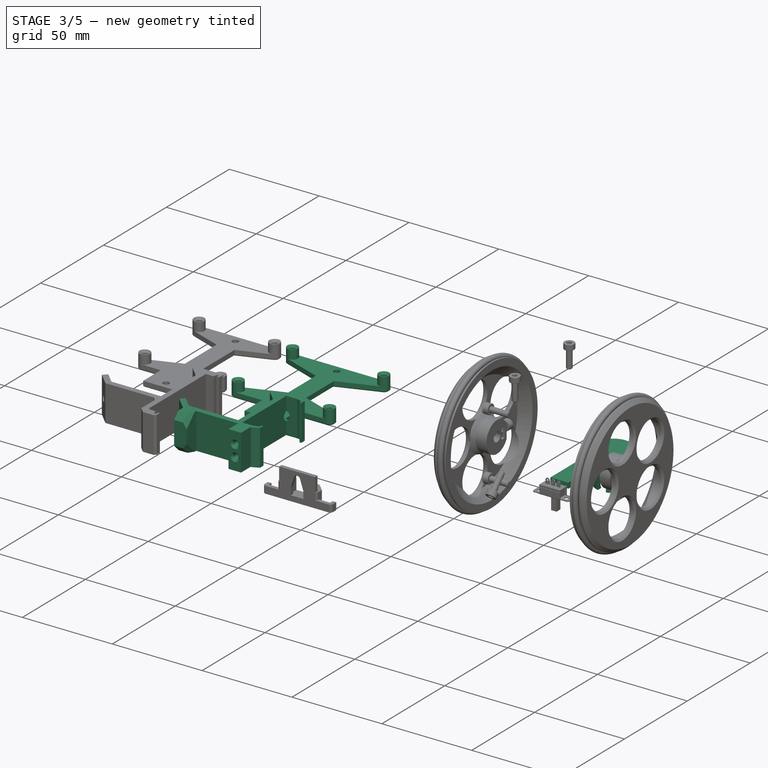
[diagram: stage 3 of 5 — iso view after this stage's code; geometry added in this stage tinted green]
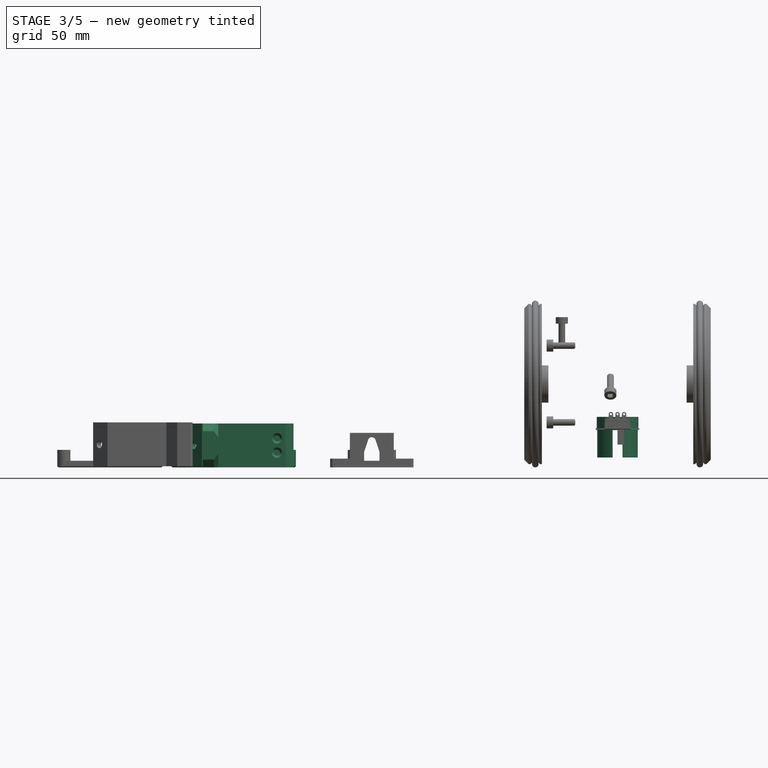
[diagram: stage 3 of 5 — front view after this stage's code; geometry added in this stage tinted green]
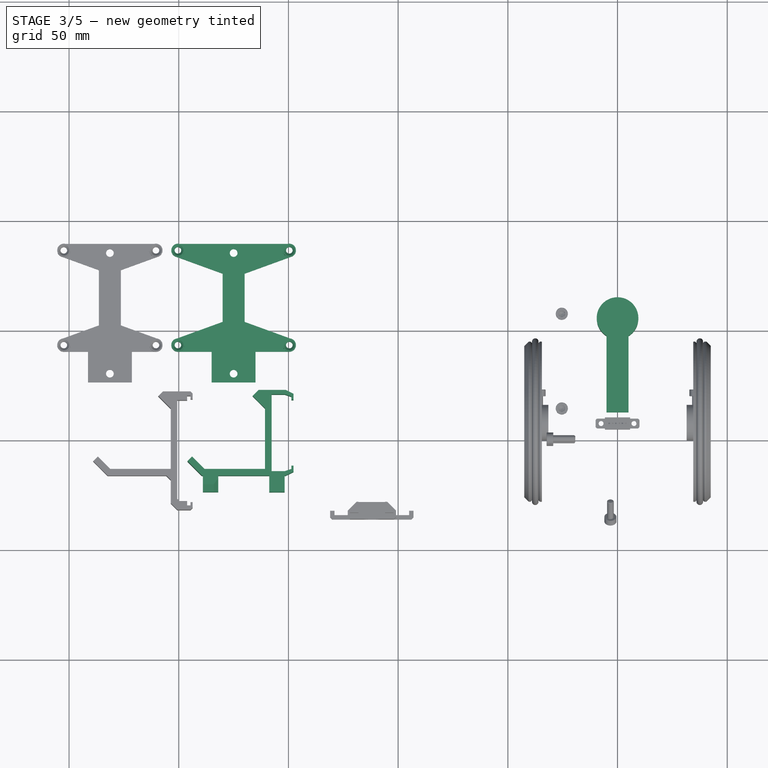
[diagram: stage 3 of 5 — top view after this stage's code; geometry added in this stage tinted green]
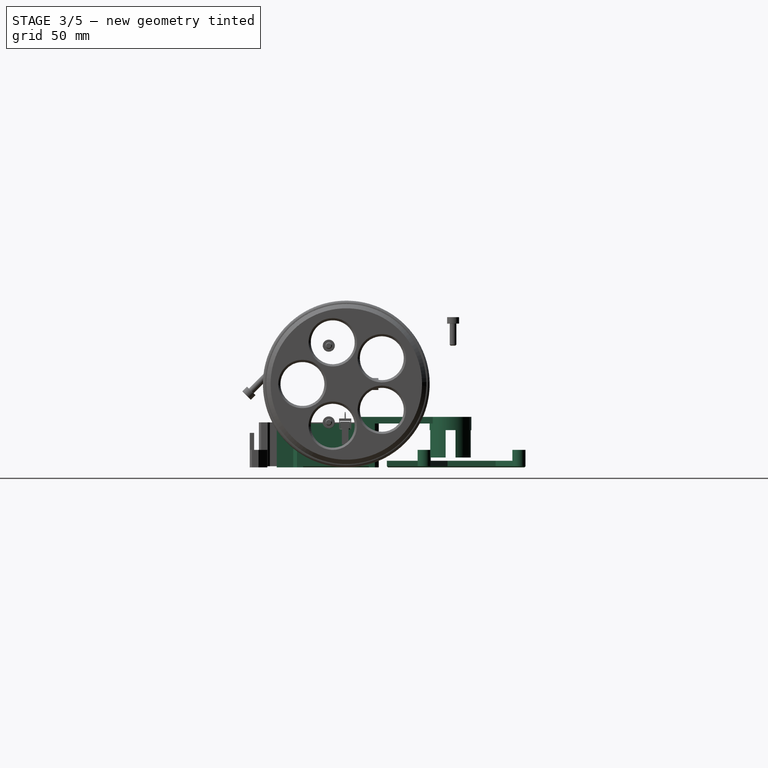
[diagram: stage 3 of 5 — right view after this stage's code; geometry added in this stage tinted green]
FEATURE [Part::Cylinder] Cylinder  label="BallCasterCylinder"
  Angle = 360
  Height = 18.5
  Placement = pos=(0,0,-3) rot=(0,0,1;0rad)
  Radius = 9.5
FEATURE [Part::Sphere] Sphere  label="BallCasterSphere"
  Angle1 = -90
  Angle2 = 90
  Angle3 = 360
  Radius = 7.25
FEATURE [Sketcher::SketchObject] Sketch014  label="BallCasterGrooveSketch014"
  Placement = pos=(0,0,-3) rot=(1,0,0;3.14159rad)
  Support = -> Cylinder [Face3]
  sketch-geometry (4):
    g0: LineSegment StartX=-2.25 StartY=10 StartZ=0 EndX=2.25 EndY=10 EndZ=0
    g1: LineSegment StartX=2.25 StartY=10 StartZ=0 EndX=2.25 EndY=-10 EndZ=0
    g2: LineSegment StartX=2.25 StartY=-10 StartZ=0 EndX=-2.25 EndY=-10 EndZ=0
    g3: LineSegment StartX=-2.25 StartY=-10 StartZ=0 EndX=-2.25 EndY=10 EndZ=0
  constraints (11):
    c: Coincident(g0,g1)
    c: Coincident(g1,g2)
    c: Coincident(g2,g3)
    c: Coincident(g3,g0)
    c: Horizontal(g0)
    c: Horizontal(g2)
    c: Vertical(g1)
    c: Vertical(g3)
    c: DistanceX(g2) = -4.5
    c: DistanceY(g3) = 20
    c: Symmetric(g0,g1,g-1)
FEATURE [PartDesign::Pocket] Pocket010  label="BallCasterGroovePocket010"
  Length = 12.5
  Placement = pos=(0,0,-3) rot=(0,0,1;0rad)
  Sketch = -> Sketch014
  Type = 0
FEATURE [PartDesign::PolarPattern] PolarPattern  label="BallCasterGroovePolarPattern"
  Angle = 90
  Axis = -> Sketch014 [N_Axis]
  Occurrences = 2
  Originals = -> [Pocket010]
  Placement = pos=(0,0,-3) rot=(0,0,1;0rad)
FEATURE [Part::Offset] Offset  label="BallCasterSphereOffset"
  Fill = false
  Intersection = false
  Join = 0
  Mode = 0
  SelfIntersection = false
  Source = -> Sphere
  Value = 0.25
FEATURE [Part::Cut] Cut  label="BallCasterCut"
  Base = -> PolarPattern
  Tool = -> Offset
FEATURE [Part::FeaturePython] Clone  label="Clone of BallCasterCut"  # Draft clone (typed FeaturePython)
  Objects = -> [Cut]
  Placement = pos=(0,55.5,-30.5) rot=(0,0,1;0rad)
  Scale = (1,1,1)
FEATURE [Part::Box] Box001  label="BallCasterCube001"
  Height = 3
  Length = 10
  Placement = pos=(-5,12.5,-18) rot=(0,0,1;0rad)
  Width = 43
FEATURE [App::DocumentObjectGroup] Group003  label="ShellGroup"
  Group = -> [Pocket015,Chamfer017,Thickness]
FEATURE [Sketcher::SketchObject] Sketch028  label="KeypadBracketSketch028"
  Placement = pos=(0,0,18) rot=(0,0,1;0rad)
  sketch-geometry (14):
    g0: LineSegment [constr] StartX=25.4 StartY=13.5 StartZ=0 EndX=-25.4 EndY=13.5 EndZ=0
    g1: LineSegment [constr] StartX=-25.4 StartY=13.5 StartZ=0 EndX=-25.4 EndY=56.68 EndZ=0
    g2: LineSegment [constr] StartX=-25.4 StartY=56.68 StartZ=0 EndX=25.4 EndY=56.68 EndZ=0
    g3: LineSegment [constr] StartX=25.4 StartY=56.68 StartZ=0 EndX=25.4 EndY=13.5 EndZ=0
    g4: LineSegment StartX=0 StartY=-3.5 StartZ=0 EndX=10 EndY=-3.5 EndZ=0
    g5: LineSegment StartX=10 StartY=-3.5 StartZ=0 EndX=10 EndY=10.5 EndZ=0
    g6: LineSegment StartX=10 StartY=10.5 StartZ=0 EndX=25.4 EndY=10.5 EndZ=0
    g7: ArcOfCircle CenterX=25.4 CenterY=13.5 CenterZ=0 NormalX=0 NormalY=0 NormalZ=1 Radius=3 StartAngle=4.71239 EndAngle=7.50492
    g8: LineSegment StartX=26.4261 StartY=16.3191 StartZ=0 EndX=5 EndY=24.1175 EndZ=0
    g9: LineSegment StartX=5 StartY=24.1175 StartZ=0 EndX=5 EndY=46.0625 EndZ=0
    g10: LineSegment StartX=5 StartY=46.0625 StartZ=0 EndX=26.4261 EndY=53.8609 EndZ=0
    g11: ArcOfCircle CenterX=25.4 CenterY=56.68 CenterZ=0 NormalX=0 NormalY=0 NormalZ=1 Radius=3 StartAngle=5.06145 EndAngle=7.85398
    g12: LineSegment StartX=25.4 StartY=59.68 StartZ=0 EndX=0 EndY=59.68 EndZ=0
    g13: LineSegment StartX=0 StartY=59.68 StartZ=0 EndX=0 EndY=-3.5 EndZ=0
  constraints (38):
    c: Coincident(g0,g1)
    c: Coincident(g1,g2)
    c: Coincident(g2,g3)
    c: Coincident(g3,g0)
    c: Horizontal(g0)
    c: Horizontal(g2)
    c: Vertical(g1)
    c: Vertical(g3)
    c: DistanceX(g0) = -50.8
    c: DistanceY(g3) = -43.18
    c: Symmetric(g0,g0,g-2)
    c: Coincident(g4,g5)
    c: Coincident(g5,g6)
    c: Tangent(g6,g7)
    c: Tangent(g7,g8)
    c: Coincident(g8,g9)
    c: Coincident(g9,g10)
    c: Tangent(g10,g11)
    c: Tangent(g11,g12)
    c: Coincident(g12,g13)
    c: Coincident(g13,g4)
    c: Coincident(g7,g0)
    c: Coincident(g11,g2)
    c: Equal(g11,g7)
    c: Vertical(g13)
    c: Vertical(g9)
    c: Vertical(g5)
    c: Horizontal(g4)
    c: Horizontal(g6)
    c: Horizontal(g12)
    c: PointOnObject(g4,g-2)
    c: DistanceY(g-1,g4) = -3.5
    c: DistanceY(g5) = 14
    c: DistanceX(g-1,g8) = 5
    c: Angle(g12,g10) = 0.349066
    c: Angle(g8,g6) = 0.349066
    c: Radius(g7) = 3
    c: DistanceX(g4) = 10
FEATURE [PartDesign::Pad] Pad007  label="KeypadBracketPad007"
  Length = 3
  Length2 = 100
  Placement = pos=(0,0,18) rot=(0,0,1;0rad)
  Sketch = -> Sketch028
  Type = 0
FEATURE [Part::Cylinder] Cylinder001  label="KeypadBracketScrewCylinder"
  Angle = 360
  Height = 8
  Placement = pos=(25.4,13.5,18) rot=(0,0,1;0rad)
  Radius = 3
FEATURE [Part::Cylinder] Cylinder002  label="KeypadBracketScrewCylinder001"
  Angle = 360
  Height = 8
  Placement = pos=(25.4,56.68,18) rot=(0,0,1;0rad)
  Radius = 3
FEATURE [Part::MultiFuse] Fusion003  label="KeypadBracketScrewFusion003"
  Shapes = -> [Cylinder002,Cylinder001,Pad007]
FEATURE [Sketcher::SketchObject] Sketch029  label="KeypadBracketScrewHolesSketch029"
  ExternalGeometry = -> [Fusion003]
  Placement = pos=(0,0,26) rot=(0,0,1;0rad)
  Support = -> Fusion003 [Face14]
  sketch-geometry (3):
    g0: Circle CenterX=25.4 CenterY=13.5 CenterZ=0 NormalX=0 NormalY=0 NormalZ=1 Radius=1.5
    g1: LineSegment [constr] StartX=25.4 StartY=13.5 StartZ=0 EndX=25.4 EndY=56.68 EndZ=0
    g2: Circle CenterX=25.4 CenterY=56.68 CenterZ=0 NormalX=0 NormalY=0 NormalZ=1 Radius=1.5
  constraints (7):
    c: Radius(g0) = 1.5
    c: Vertical(g1)
    c: DistanceY(g1) = 43.18
    c: Coincident(g1,g2)
    c: Equal(g2,g0)
    c: Coincident(g1,g-3)
    c: Coincident(g0,g1)
FEATURE [PartDesign::Pocket] Pocket021  label="KeypadBracketScrewHolesPocket021"
  Length = 10
  Sketch = -> Sketch029
  Type = 0
FEATURE [Part::Chamfer] Chamfer018  label="KeypadBracketScrewHolesChamfer018"
  Base = -> Pocket021
  Edges = 2 edges r=1: [Edge36,Edge38]
FEATURE [Part::Mirroring] Part__Mirroring004  label="KeypadBracketScrewHolesChamfer018 (Mirror #3)"
  Base = (0,0,0)
  Normal = (1,0,0)
  Source = -> Chamfer018
FEATURE [Part::MultiFuse] Fusion004  label="KeypadBracketFusion004"
  Shapes = -> [Part__Mirroring004,Chamfer018]
FEATURE [Sketcher::SketchObject] Sketch030  label="KeypadBracketMountingHolesSketch030"
  Placement = pos=(0,0,21) rot=(0,0,1;0rad)
  Support = -> Fusion004 [Face29]
  sketch-geometry (2):
    g0: Circle CenterX=0 CenterY=0.5 CenterZ=0 NormalX=0 NormalY=0 NormalZ=1 Radius=1.75
    g1: Circle CenterX=0 CenterY=55.5 CenterZ=0 NormalX=0 NormalY=0 NormalZ=1 Radius=1.75
  constraints (6):
    c: PointOnObject(g0,g-2)
    c: DistanceY(g-1,g0) = 0.5
    c: Radius(g0) = 1.75
    c: PointOnObject(g1,g-2)
    c: DistanceY(g0,g1) = 55
    c: Equal(g1,g0)
FEATURE [PartDesign::Pocket] Pocket022  label="KeypadBracketMountingHolesPocket022"
  Length = 5
  Sketch = -> Sketch030
  Type = 0
FEATURE [Part::Chamfer] Chamfer019  label="KeypadBracketPrintingChamfer019-Final"
  Base = -> Pocket022
  Edges = 32 edges r=0.5: [Edge3,Edge4,Edge7,Edge8,Edge9,Edge10,Edge11,Edge12,Edge13,Edge14,Edge15,Edge16,Edge17,Edge18,Edge19,Edge20,Edge21,Edge22,Edge23,Edge24,Edge25,Edge26,Edge27,Edge28,Edge29,Edge30,Edge31,Edge32,Edge33,Edge34,Edge35,Edge36]
FEATURE [App::DocumentObjectGroup] Group005  label="Addon-KeypadBracketGroup005"
  Group = -> [Part__Feature006,Chamfer019,Fusion004,Fusion003]
FEATURE [App::DocumentObjectGroup] Group007  label="Addon-CableClipGroup007"
FEATURE [Part::Chamfer] Chamfer021  label="BoardBracketPrintingChamfer021"
  Base = -> Chamfer020
  Edges = 13 edges r=0.5: [Edge45,Edge47,Edge49,Edge51,Edge53,Edge55,Edge57,Edge59,Edge60,Edge62,Edge64,Edge66,Edge68]
FEATURE [Part::Chamfer] Chamfer022  label="BoardBracketPinsChamfer022-Final"
  Base = -> Chamfer021
  Edges = 2 edges r=2: [Edge80,Edge86]
FEATURE [Part::FeaturePython] Clone005  label="Clone of KeypadBracketPrintingChamfer019-Final"  # Draft clone (typed FeaturePython)
  Objects = -> [Chamfer019]
  Placement = pos=(-175,30,-56) rot=(0,0,1;0rad)
  Scale = (1,1,1)
FEATURE [Part::FeaturePython] Clone006  label="Clone of BoardBracketPinsChamfer022-Final"  # Draft clone (typed FeaturePython)
  Objects = -> [Chamfer022]
  Placement = pos=(-178,2,-28) rot=(-0.357407,0.862856,0.357407;1.71777rad)
  Scale = (1,1,1)
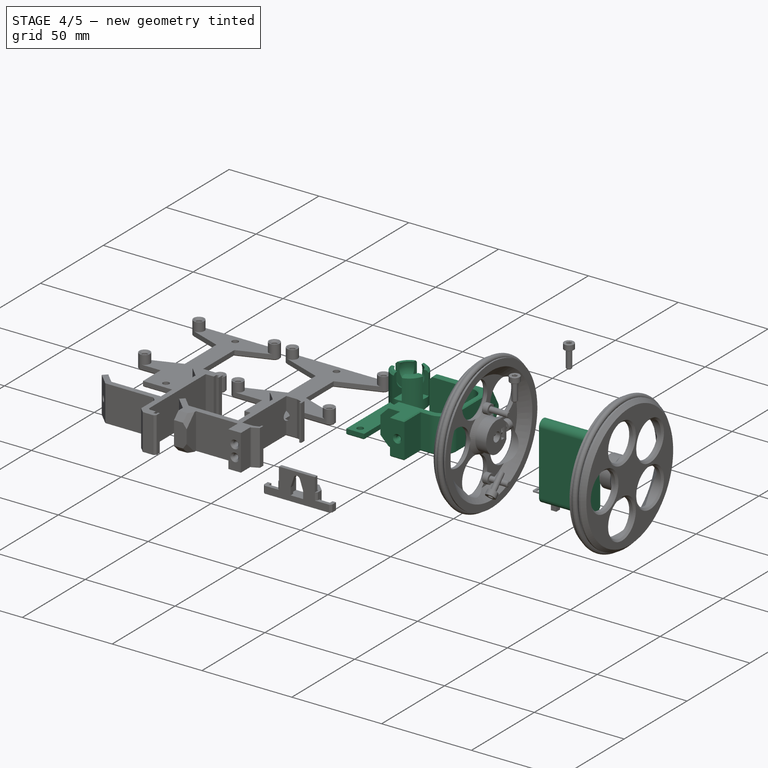
[diagram: stage 4 of 5 — iso view after this stage's code; geometry added in this stage tinted green]
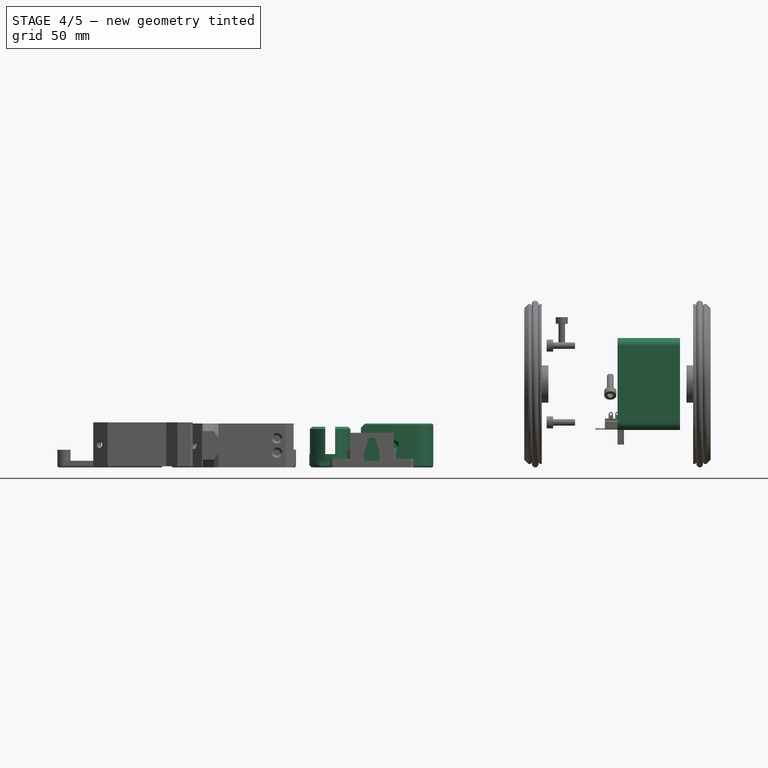
[diagram: stage 4 of 5 — front view after this stage's code; geometry added in this stage tinted green]
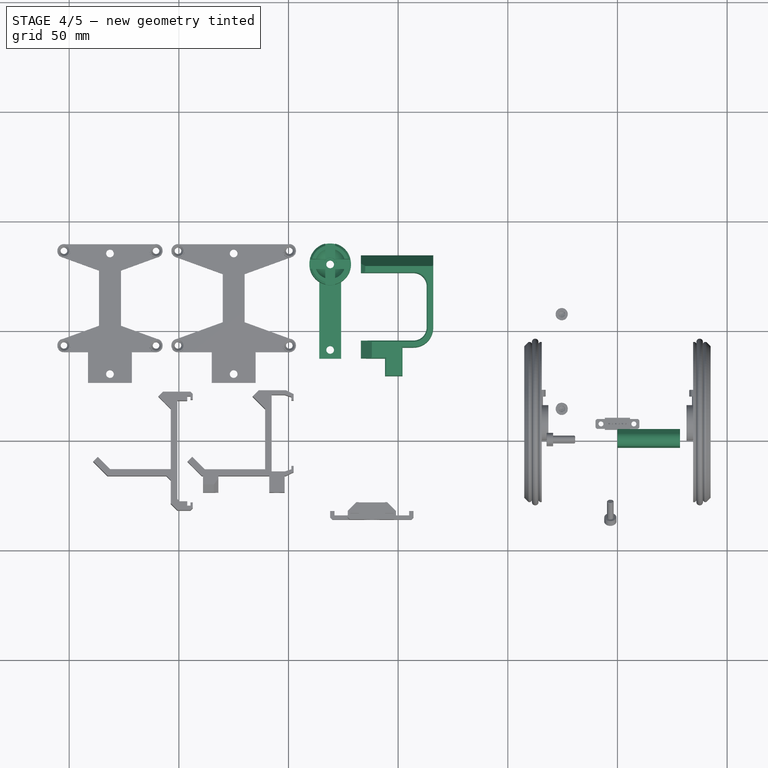
[diagram: stage 4 of 5 — top view after this stage's code; geometry added in this stage tinted green]
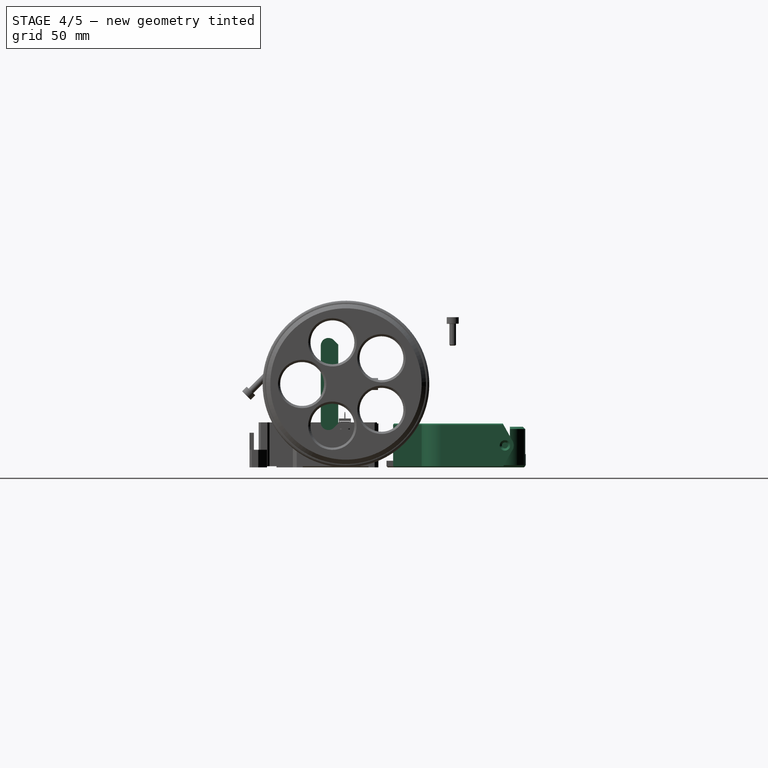
[diagram: stage 4 of 5 — right view after this stage's code; geometry added in this stage tinted green]
FEATURE [Part::Feature] Part__Feature  label="StepMotor_28BYJ-48-left"
  Placement = pos=(19.925,0,0) rot=(0.57735,0.57735,0.57735;2.0944rad)
  shape: bbox 28.55 x 44.13 x 42 mm, 425 faces (baked)
FEATURE [Sketcher::SketchObject] Sketch001  label="MotorBracketSketch001"
  Placement = pos=(0,0,0) rot=(0.57735,0.57735,0.57735;2.0944rad)
  sketch-geometry (6):
    g0: ArcOfCircle CenterX=0 CenterY=17.5 CenterZ=0 NormalX=0 NormalY=0 NormalZ=1 Radius=3.5 StartAngle=0.785404 EndAngle=3.14159
    g1: ArcOfCircle CenterX=0 CenterY=-17.5 CenterZ=0 NormalX=0 NormalY=0 NormalZ=1 Radius=3.5 StartAngle=3.14159 EndAngle=5.49778
    g2: LineSegment StartX=-3.5 StartY=17.5 StartZ=0 EndX=-3.5 EndY=-17.5 EndZ=0
    g3: LineSegment StartX=4.5 StartY=17.9497 StartZ=0 EndX=4.5 EndY=-17.9497 EndZ=0
    g4: LineSegment StartX=4.5 StartY=17.9497 StartZ=0 EndX=2.47486 EndY=19.9749 EndZ=0
    g5: LineSegment StartX=4.5 StartY=-17.9497 StartZ=0 EndX=2.47486 EndY=-19.9749 EndZ=0
  constraints (20):
    c: Tangent(g0,g2)
    c: Tangent(g1,g2)
    c: Coincident(g0,g2)
    c: Coincident(g2,g1)
    c: Vertical(g2)
    c: Equal(g0,g1)
    c: Radius(g1) = 3.5
    c: PointOnObject(g1,g-2)
    c: DistanceY(g0,g1) = -35
    c: Symmetric(g1,g0,g-1)
    c: Vertical(g3)
    c: Coincident(g3,g4)
    c: Coincident(g0,g4)
    c: Tangent(g0,g4)
    c: Angle(g4,g3) = 2.35619
    c: Coincident(g1,g5)
    c: Coincident(g3,g5)
    c: Tangent(g5,g1)
    c: Angle(g3,g5) = 2.35619
    c: DistanceX(g3,g1) = -8
FEATURE [PartDesign::Pad] Pad001  label="MotorBracketPad001"
  Length = 28.5
  Length2 = 100
  Placement = pos=(0,0,0) rot=(0.57735,0.57735,0.57735;2.0944rad)
  Sketch = -> Sketch001
  Type = 0
FEATURE [Part::Box] Box  label="BatteryBracketCube"
  Height = 33
  Length = 10
  Placement = pos=(0,4.5,-15) rot=(0,0,1;0rad)
  Width = 50
FEATURE [Sketcher::SketchObject] Sketch005  label="BatteryBracketSketch005"
  Placement = pos=(10,4.5,-15) rot=(0.57735,0.57735,0.57735;2.0944rad)
  Support = -> Box [Face2]
  sketch-geometry (12):
    g0: LineSegment StartX=16 StartY=0 StartZ=0 EndX=47 EndY=0 EndZ=0
    g1: LineSegment StartX=47 StartY=0 StartZ=0 EndX=47 EndY=30 EndZ=0
    g2: LineSegment StartX=47 StartY=30 StartZ=0 EndX=16 EndY=30 EndZ=0
    g3: LineSegment StartX=16 StartY=30 StartZ=0 EndX=16 EndY=0 EndZ=0
    g4: LineSegment StartX=0 StartY=33 StartZ=0 EndX=13 EndY=33 EndZ=0
    g5: LineSegment StartX=13 StartY=33 StartZ=0 EndX=13 EndY=19 EndZ=0
    g6: LineSegment StartX=13 StartY=19 StartZ=0 EndX=0 EndY=19 EndZ=0
    g7: LineSegment StartX=0 StartY=19 StartZ=0 EndX=0 EndY=33 EndZ=0
    g8: LineSegment StartX=0 StartY=0 StartZ=0 EndX=8 EndY=0 EndZ=0
    g9: LineSegment StartX=8 StartY=0 StartZ=0 EndX=8 EndY=11 EndZ=0
    g10: LineSegment StartX=8 StartY=11 StartZ=0 EndX=0 EndY=11 EndZ=0
    g11: LineSegment StartX=0 StartY=11 StartZ=0 EndX=0 EndY=0 EndZ=0
  constraints (35):
    c: Coincident(g0,g1)
    c: Coincident(g1,g2)
    c: Coincident(g2,g3)
    c: Coincident(g3,g0)
    c: Horizontal(g0)
    c: Horizontal(g2)
    c: Vertical(g1)
    c: Vertical(g3)
    c: PointOnObject(g0,g-1)
    c: DistanceY(g3) = -30
    c: DistanceX(g0) = 31
    c: DistanceX(g-1,g0) = 16
    c: Coincident(g4,g5)
    c: Coincident(g5,g6)
    c: Coincident(g6,g7)
    c: Coincident(g7,g4)
    c: Horizontal(g4)
    c: Horizontal(g6)
    c: Vertical(g5)
    c: Vertical(g7)
    c: DistanceY(g-1,g6) = 19
    c: PointOnObject(g6,g-2)
    c: DistanceX(g6) = -13
    c: DistanceY(g7) = 14
    c: Coincident(g8,g9)
    c: Coincident(g9,g10)
    c: Coincident(g10,g11)
    c: Coincident(g11,g8)
    c: Horizontal(g8)
    c: Horizontal(g10)
    c: Vertical(g9)
    c: Vertical(g11)
    c: Coincident(g8,g-1)
    c: DistanceY(g10,g6) = 8
    c: DistanceX(g10) = -8
FEATURE [PartDesign::Pocket] Pocket003  label="BatteryBracketPocket003"
  Length = 10
  Placement = pos=(0,4.5,-15) rot=(0,0,1;0rad)
  Sketch = -> Sketch005
  Type = 0
FEATURE [App::DocumentObjectGroup] Group  label="MotorBracketGroup"
  Group = -> [Chamfer,Pocket001,Pocket,Pad001,Pocket002,Fusion001,Pocket004,Chamfer005,Pocket008,Chamfer004]
FEATURE [Part::Chamfer] Chamfer009  label="BatteryBracketFrontChamfer016"
  Base = -> Pocket003
  Edges = 1 edges r=5: [Edge15]
FEATURE [Part::Fillet] Fillet004  label="BatteryBracketBatteryFillet004"
  Base = -> Chamfer009
  Edges = 3 edges: [Edge14 r=6,Edge19 r=6,Edge37 r=9]
FEATURE [Part::Mirroring] Part__Mirroring003  label="BatteryBracketBatteryFillet004 (Mirror #3)"
  Base = (0,0,0)
  Normal = (1,0,0)
  Source = -> Fillet004
FEATURE [Part::MultiFuse] Fusion  label="BatteryBracketFusion"
  Shapes = -> [Part__Mirroring003,Fillet004]
FEATURE [Sketcher::SketchObject] Sketch010  label="BatteryBracketScrewHoleSketch010"
  Placement = pos=(0,4.5,0) rot=(1,0,0;1.5708rad)
  Support = -> Fusion [Face16]
  sketch-geometry (1):
    g0: Circle CenterX=0 CenterY=0 CenterZ=0 NormalX=0 NormalY=0 NormalZ=1 Radius=1.375
  constraints (2):
    c: Coincident(g0,g-1)
    c: Radius(g0) = 1.375
FEATURE [PartDesign::Pocket] Pocket006  label="BatteryBracketScrewHolePocket006"
  Length = 8
  Sketch = -> Sketch010
  Type = 0
FEATURE [Sketcher::SketchObject] Sketch011  label="BatteryBracketScrewHoleSketch011"
  Placement = pos=(0,0,-15) rot=(1,0,0;3.14159rad)
  Support = -> Pocket006 [Face20]
  sketch-geometry (1):
    g0: Circle CenterX=0 CenterY=-16.5 CenterZ=0 NormalX=0 NormalY=0 NormalZ=1 Radius=1.375
  constraints (3):
    c: PointOnObject(g0,g-2)
    c: Radius(g0) = 1.375
    c: DistanceY(g-1,g0) = -16.5
FEATURE [PartDesign::Pocket] Pocket007  label="BatteryBracketScrewHolePocket007"
  Length = 8
  Sketch = -> Sketch011
  Type = 0
FEATURE [Part::Chamfer] Chamfer011  label="BatteryBracketScrewHoleChamfer018"
  Base = -> Pocket007
  Edges = 2 edges r=1: [Edge41,Edge62]
FEATURE [Sketcher::SketchObject] Sketch015  label="BatteryBracketRearSketch015"
  Placement = pos=(0,0,18) rot=(0,0,1;0rad)
  Support = -> Chamfer011 [Face18]
  sketch-geometry (4):
    g0: LineSegment StartX=10 StartY=54.5 StartZ=0 EndX=1.94929 EndY=58.9929 EndZ=0
    g1: ArcOfCircle CenterX=0 CenterY=55.5 CenterZ=0 NormalX=0 NormalY=0 NormalZ=1 Radius=4 StartAngle=1.06178 EndAngle=2.07982
    g2: LineSegment StartX=-1.94929 StartY=58.9929 StartZ=0 EndX=-10 EndY=54.5 EndZ=0
    g3: LineSegment StartX=-10 StartY=54.5 StartZ=0 EndX=10 EndY=54.5 EndZ=0
  constraints (11):
    c: Coincident(g2,g3)
    c: Coincident(g3,g0)
    c: Tangent(g1,g2)
    c: Tangent(g0,g1)
    c: Horizontal(g3)
    c: PointOnObject(g1,g-2)
    c: DistanceY(g-1,g1) = 55.5
    c: DistanceY(g2,g1) = 1
    c: DistanceX(g-1,g0) = 10
    c: Radius(g1) = 4
    c: Equal(g2,g0)
FEATURE [PartDesign::Pad] Pad004  label="BatteryBracketRearPad004"
  Length = 33
  Length2 = 100
  Reversed = true
  Sketch = -> Sketch015
  Type = 0
FEATURE [Sketcher::SketchObject] Sketch016  label="BatteryBracketScrewHoleSketch016"
  Placement = pos=(0,0,18) rot=(0,0,1;0rad)
  Support = -> Pad004 [Face30]
  sketch-geometry (1):
    g0: Circle CenterX=0 CenterY=55.5 CenterZ=0 NormalX=0 NormalY=0 NormalZ=1 Radius=1.375
  constraints (3):
    c: PointOnObject(g0,g-2)
    c: DistanceY(g-1,g0) = 55.5
    c: Radius(g0) = 1.375
FEATURE [PartDesign::Pocket] Pocket011  label="BatteryBracketScrewHolePocket011"
  Length = 8
  Sketch = -> Sketch016
  Type = 0
FEATURE [Sketcher::SketchObject] Sketch025  label="BatteryBracketScrewHoleSketch025"
  Placement = pos=(0,0,-15) rot=(1,0,0;3.14159rad)
  Support = -> Pocket011 [Face15]
  sketch-geometry (1):
    g0: Circle CenterX=0 CenterY=-55.5 CenterZ=0 NormalX=0 NormalY=0 NormalZ=1 Radius=1.375
  constraints (3):
    c: PointOnObject(g0,g-2)
    c: DistanceY(g-1,g0) = -55.5
    c: Radius(g0) = 1.375
FEATURE [PartDesign::Pocket] Pocket017  label="BatteryBracketScrewHolePocket017"
  Length = 8
  Sketch = -> Sketch025
  Type = 0
FEATURE [Part::Chamfer] Chamfer012  label="BatteryBracketRearChamfer019"
  Base = -> Pocket017
  Edges = 4 edges: [Edge16 r=2,Edge33 r=2,Edge58 r=1,Edge70 r=1]
FEATURE [Part::MultiFuse] Fusion002  label="BallCasterFusion002"
  Shapes = -> [Box001,Clone]
FEATURE [Sketcher::SketchObject] Sketch021  label="BallCasterScrewHoleSketch021"
  Placement = pos=(0,0,-18) rot=(1,0,0;3.14159rad)
  Support = -> Fusion002 [Face2]
  sketch-geometry (1):
    g0: Circle CenterX=0 CenterY=-16.5 CenterZ=0 NormalX=0 NormalY=0 NormalZ=1 Radius=1.75
  constraints (3):
    c: PointOnObject(g0,g-2)
    c: Radius(g0) = 1.75
    c: DistanceY(g-1,g0) = -16.5
FEATURE [PartDesign::Pocket] Pocket018  label="BallCasterScrewHolePocket018"
  Length = 5
  Sketch = -> Sketch021
  Type = 0
FEATURE [Sketcher::SketchObject] Sketch026  label="BallCasterScrewHeadSketch026"
  Placement = pos=(0,0,-33.5) rot=(1,0,0;3.14159rad)
  Support = -> Pocket018 [Face19]
  sketch-geometry (1):
    g0: Circle CenterX=0 CenterY=-55.5 CenterZ=0 NormalX=0 NormalY=0 NormalZ=1 Radius=3
  constraints (3):
    c: PointOnObject(g0,g-2)
    c: Radius(g0) = 3
    c: DistanceY(g-1,g0) = -55.5
FEATURE [PartDesign::Pocket] Pocket019  label="BallCasterScrewHeadPocket019"
  Length = 15.5
  Sketch = -> Sketch026
  Type = 0
FEATURE [Sketcher::SketchObject] Sketch027  label="BallCasterScrewHoleSketch027"
  Placement = pos=(0,0,-18) rot=(1,0,0;3.14159rad)
  Support = -> Pocket019 [Face2]
  sketch-geometry (1):
    g0: Circle CenterX=0 CenterY=-55.5 CenterZ=0 NormalX=0 NormalY=0 NormalZ=1 Radius=1.75
  constraints (3):
    c: PointOnObject(g0,g-2)
    c: DistanceY(g-1,g0) = -55.5
    c: Radius(g0) = 1.75
FEATURE [PartDesign::Pocket] Pocket020  label="BallCasterScrewHolePocket020"
  Length = 5
  Sketch = -> Sketch027
  Type = 0
FEATURE [Part::Chamfer] Chamfer013  label="BallCasterChamfer013"
  Base = -> Pocket020
  Edges = 4 edges r=1: [Edge22,Edge26,Edge30,Edge34]
FEATURE [Part::Chamfer] Chamfer015  label="BatteryBracketPrintingChamfer021-Final"
  Base = -> Chamfer012
  Edges = 24 edges r=0.5: [Edge1,Edge3,Edge5,Edge6,Edge7,Edge8,Edge9,Edge10,Edge12,Edge13,Edge14,Edge15,Edge21,Edge30,Edge36,Edge44,Edge49,Edge54,Edge57,Edge61,Edge62,Edge67,Edge71,Edge72]
FEATURE [Part::Chamfer] Chamfer016  label="BallCasterPrintingChamfer022-Final"
  Base = -> Chamfer013
  Edges = 7 edges: [Edge7 r=1,Edge15 r=1,Edge43 r=0.5,Edge45 r=0.5,Edge46 r=0.5,Edge47 r=0.5,Edge48 r=0.5]
FEATURE [Part::FeaturePython] Clone003  label="Clone of BatteryBracketPrintingChamfer021-Final"  # Draft clone (typed FeaturePython)
  Objects = -> [Chamfer015]
  Placement = pos=(-102,25,-28) rot=(0,1,0;1.5708rad)
  Scale = (1,1,1)
FEATURE [Part::FeaturePython] Clone004  label="Clone of BallCasterPrintingChamfer022-Final"  # Draft clone (typed FeaturePython)
  Objects = -> [Chamfer016]
  Placement = pos=(-131,25,-53) rot=(0,1,0;3.14159rad)
  Scale = (1,1,1)
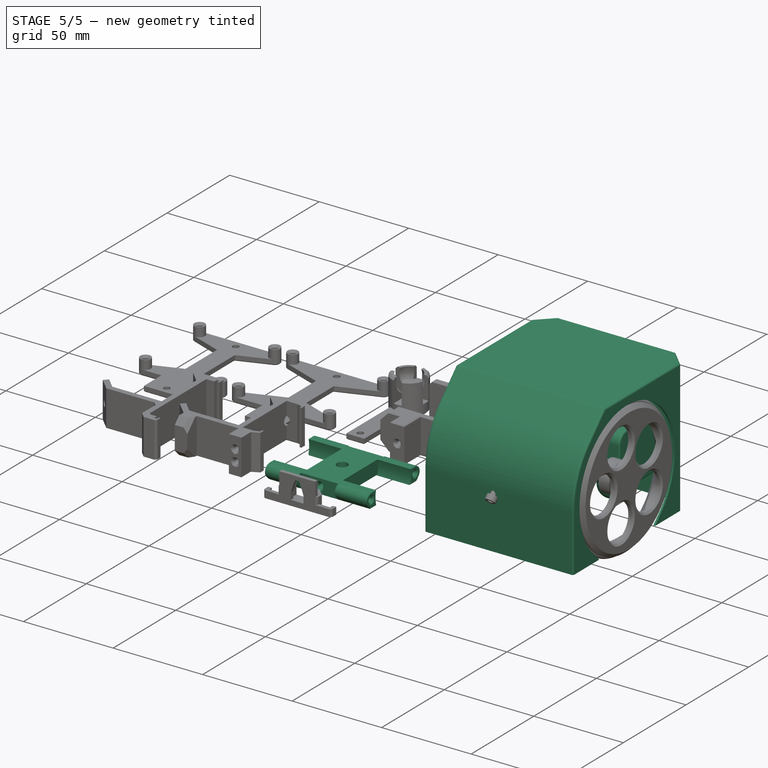
[diagram: stage 5 of 5 — iso view after this stage's code; geometry added in this stage tinted green]
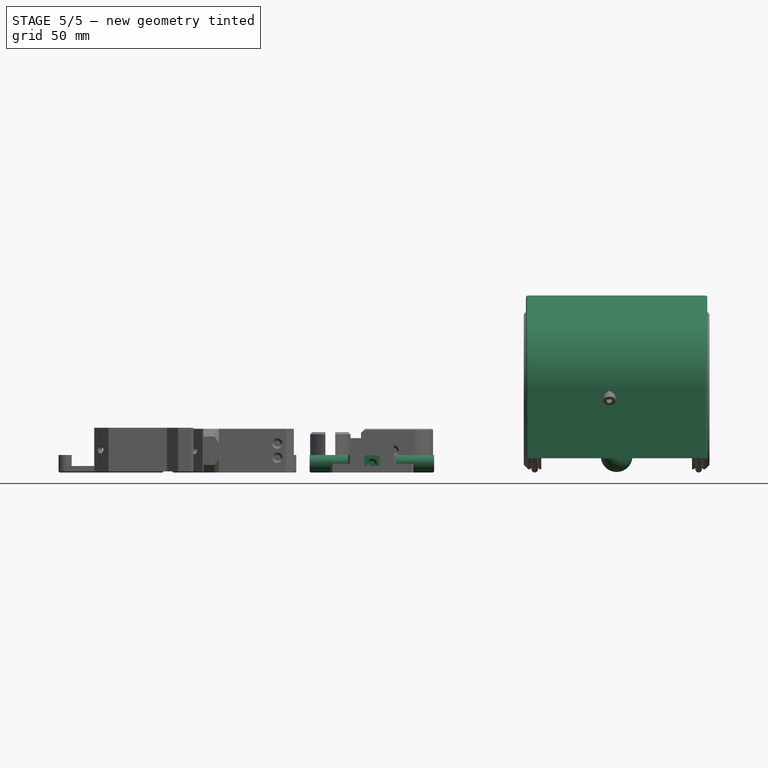
[diagram: stage 5 of 5 — front view after this stage's code; geometry added in this stage tinted green]
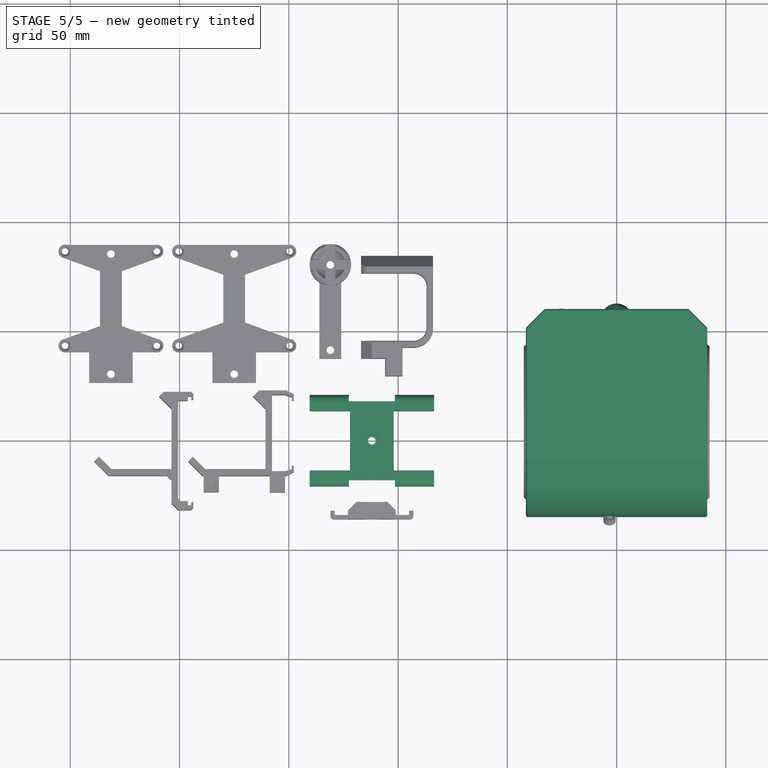
[diagram: stage 5 of 5 — top view after this stage's code; geometry added in this stage tinted green]
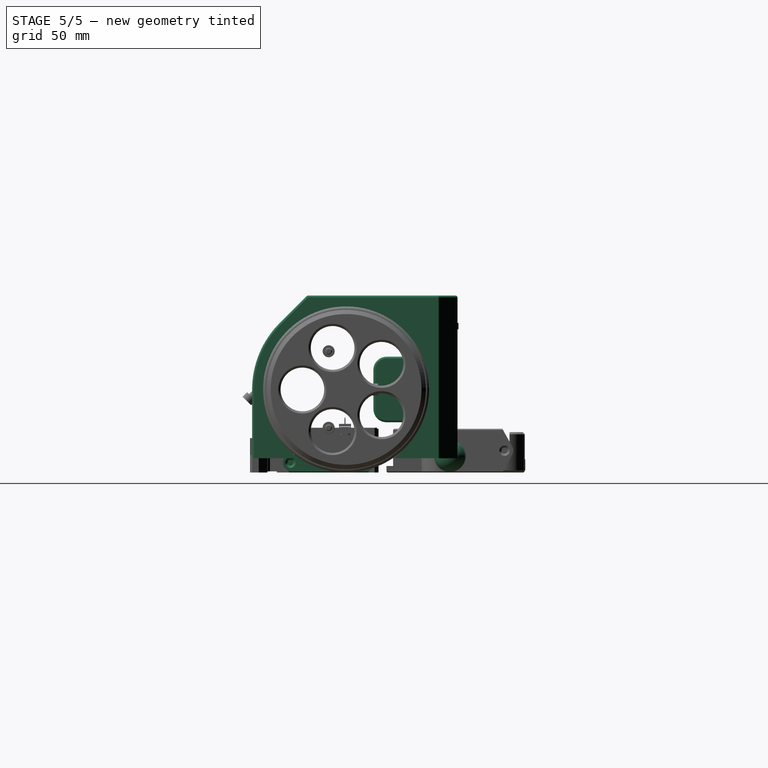
[diagram: stage 5 of 5 — right view after this stage's code; geometry added in this stage tinted green]
FEATURE [Sketcher::SketchObject] Sketch002  label="MotorBracketMotorSketch002"
  Placement = pos=(28.5,0,0) rot=(0.57735,0.57735,0.57735;2.0944rad)
  Support = -> Pad001 [Face8]
  sketch-geometry (1):
    g0: Circle CenterX=0 CenterY=0 CenterZ=0 NormalX=0 NormalY=0 NormalZ=1 Radius=14.25
  constraints (2):
    c: Coincident(g0,g-1)
    c: Radius(g0) = 14.25
FEATURE [PartDesign::Pocket] Pocket  label="MotorBracketMotorPocket"
  Length = 18.5
  Placement = pos=(0,0,0) rot=(0.57735,0.57735,0.57735;2.0944rad)
  Sketch = -> Sketch002
  Type = 0
FEATURE [Sketcher::SketchObject] Sketch003  label="MotorBracketScrewHoleSketch003"
  Placement = pos=(28.5,0,0) rot=(0.57735,0.57735,0.57735;2.0944rad)
  Support = -> Pocket [Face5]
  sketch-geometry (1):
    g0: Circle CenterX=0 CenterY=17.5 CenterZ=0 NormalX=0 NormalY=0 NormalZ=1 Radius=1.375
  constraints (3):
    c: PointOnObject(g0,g-2)
    c: DistanceY(g-1,g0) = 17.5
    c: Radius(g0) = 1.375
FEATURE [PartDesign::Pocket] Pocket001  label="MotorBracketScrewHolePocket001"
  Length = 10
  Placement = pos=(0,0,0) rot=(0.57735,0.57735,0.57735;2.0944rad)
  Sketch = -> Sketch003
  Type = 0
FEATURE [PartDesign::Mirrored] Mirrored  label="MotorBracketScrewHoleMirrored"
  MirrorPlane = -> Sketch003 [H_Axis]
  Originals = -> [Pocket001]
  Placement = pos=(0,0,0) rot=(0.57735,0.57735,0.57735;2.0944rad)
FEATURE [Part::Chamfer] Chamfer  label="MotorBracketScrewHoleChamfer"
  Base = -> Mirrored
  Edges = 2 edges r=1: [Edge20,Edge27]
FEATURE [Sketcher::SketchObject] Sketch004  label="MotorBracketGrooveSketch004"
  Placement = pos=(0,4.5,0) rot=(0,0.707107,0.707107;3.14159rad)
  Support = -> Chamfer [Face4]
  sketch-geometry (4):
    g0: LineSegment StartX=-10.5 StartY=22 StartZ=0 EndX=0 EndY=22 EndZ=0
    g1: LineSegment StartX=0 StartY=22 StartZ=0 EndX=0 EndY=18 EndZ=0
    g2: LineSegment StartX=0 StartY=18 StartZ=0 EndX=-10.5 EndY=18 EndZ=0
    g3: LineSegment StartX=-10.5 StartY=18 StartZ=0 EndX=-10.5 EndY=22 EndZ=0
  constraints (12):
    c: Coincident(g0,g1)
    c: Coincident(g1,g2)
    c: Coincident(g2,g3)
    c: Coincident(g3,g0)
    c: Horizontal(g0)
    c: Horizontal(g2)
    c: Vertical(g1)
    c: Vertical(g3)
    c: DistanceY(g1) = -4
    c: DistanceX(g0) = 10.5
    c: PointOnObject(g1,g-2)
    c: DistanceY(g-1,g1) = 18
FEATURE [PartDesign::Pocket] Pocket002  label="MotorBracketGroovePocket002"
  Length = 10
  Sketch = -> Sketch004
  Type = 0
FEATURE [PartDesign::Mirrored] Mirrored001  label="MotorBracketGrooveMirrored001"
  MirrorPlane = -> Sketch004 [H_Axis]
  Originals = -> [Pocket002]
FEATURE [Part::Mirroring] Part__Mirroring  label="MotorBracketGrooveMirrored001 (Mirror #2)"
  Base = (0,0,0)
  Normal = (1,0,0)
  Source = -> Mirrored001
FEATURE [Part::MultiFuse] Fusion001  label="MotorBracketFusion001"
  Shapes = -> [Part__Mirroring,Mirrored001]
FEATURE [Sketcher::SketchObject] Sketch008  label="MotorBracketScrewHeadSketch008"
  Placement = pos=(0,-3.5,0) rot=(1,0,0;1.5708rad)
  Support = -> Fusion001 [Face33]
  sketch-geometry (1):
    g0: Circle CenterX=0 CenterY=0 CenterZ=0 NormalX=0 NormalY=0 NormalZ=1 Radius=3
  constraints (2):
    c: Coincident(g0,g-1)
    c: Radius(g0) = 3
FEATURE [PartDesign::Pocket] Pocket004  label="MotorBracketScrewHeadPocket004"
  Length = 5
  Sketch = -> Sketch008
  Type = 0
FEATURE [Sketcher::SketchObject] Sketch009  label="MotorBracketScrewHoleSketch009"
  Placement = pos=(0,1.5,0) rot=(1,0,0;1.5708rad)
  Support = -> Pocket004 [Face30]
  sketch-geometry (1):
    g0: Circle CenterX=0 CenterY=0 CenterZ=0 NormalX=0 NormalY=0 NormalZ=1 Radius=1.75
  constraints (2):
    c: Coincident(g0,g-1)
    c: Radius(g0) = 1.75
FEATURE [PartDesign::Pocket] Pocket005  label="MotorBracketScrewHolePocket005"
  Length = 5
  Sketch = -> Sketch009
  Type = 0
FEATURE [Part::Chamfer] Chamfer004  label="MotorBracketPrintingChamfer004"
  Base = -> Pocket005
  Edges = 7 edges r=0.5: [Edge2,Edge9,Edge10,Edge13,Edge14,Edge17,Edge18]
FEATURE [Sketcher::SketchObject] Sketch012  label="MotorBracketScrewHoleSketch012"
  Placement = pos=(0,0,18) rot=(0,0,1;0rad)
  Support = -> Chamfer004 [Face33]
  sketch-geometry (1):
    g0: Circle CenterX=0 CenterY=0.5 CenterZ=0 NormalX=0 NormalY=0 NormalZ=1 Radius=1.375
  constraints (3):
    c: Radius(g0) = 1.375
    c: PointOnObject(g0,g-2)
    c: DistanceY(g-1,g0) = 0.5
FEATURE [PartDesign::Pocket] Pocket008  label="MotorBracketScrewHolePocket008"
  Length = 8
  Sketch = -> Sketch012
  Type = 0
FEATURE [Sketcher::SketchObject] Sketch013  label="MotorBracketScrewHoleSketch013"
  Placement = pos=(0,0,-18) rot=(1,0,0;3.14159rad)
  Support = -> Pocket008 [Face32]
  sketch-geometry (1):
    g0: Circle CenterX=0 CenterY=-0.5 CenterZ=0 NormalX=0 NormalY=0 NormalZ=1 Radius=1.375
  constraints (3):
    c: Radius(g0) = 1.375
    c: DistanceY(g-1,g0) = -0.5
    c: PointOnObject(g0,g-2)
FEATURE [PartDesign::Pocket] Pocket009  label="MotorBracketScrewHolePocket009"
  Length = 8
  Sketch = -> Sketch013
  Type = 0
FEATURE [Part::Chamfer] Chamfer005  label="MotorBracketScrewChamfer005-Final"
  Base = -> Pocket009
  Edges = 2 edges r=1: [Edge105,Edge109]
FEATURE [Part::FeaturePython] Clone001  label="Clone of BallCasterSphere"  # Draft clone (typed FeaturePython)
  Objects = -> [Sphere]
  Placement = pos=(0,55.5,-30.5) rot=(0,0,1;0rad)
  Scale = (1,1,1)
FEATURE [Sketcher::SketchObject] Sketch022  label="ShellSketch022"
  Placement = pos=(0,0,0) rot=(0.57735,0.57735,0.57735;2.0944rad)
  sketch-geometry (6):
    g0: ArcOfCircle CenterX=8 CenterY=0 CenterZ=0 NormalX=0 NormalY=0 NormalZ=1 Radius=42 StartAngle=2.35619 EndAngle=3.14159
    g1: LineSegment StartX=-9.39697 StartY=42 StartZ=0 EndX=58 EndY=42 EndZ=0
    g2: LineSegment StartX=58 StartY=42 StartZ=0 EndX=58 EndY=-31.5 EndZ=0
    g3: LineSegment StartX=58 StartY=-31.5 StartZ=0 EndX=-34 EndY=-31.5 EndZ=0
    g4: LineSegment StartX=-34 StartY=0 StartZ=0 EndX=-34 EndY=-31.5 EndZ=0
    g5: LineSegment StartX=-9.39697 StartY=42 StartZ=0 EndX=-21.6985 EndY=29.6985 EndZ=0
  constraints (17):
    c: Coincident(g1,g2)
    c: Coincident(g2,g3)
    c: Horizontal(g1)
    c: Vertical(g2)
    c: Horizontal(g3)
    c: PointOnObject(g0,g-1)
    c: DistanceX(g-1,g0) = 8
    c: Radius(g0) = 42
    c: DistanceY(g-1,g2) = -31.5
    c: DistanceX(g-1,g1) = 58
    c: Tangent(g0,g4)
    c: Vertical(g4)
    c: Coincident(g3,g4)
    c: Tangent(g0,g5)
    c: Coincident(g1,g5)
    c: Angle(g5,g1) = 2.35619
    c: DistanceY(g-1,g1) = 42
FEATURE [PartDesign::Pad] Pad006  label="ShellPad006"
  Length = 81
  Length2 = 100
  Midplane = true
  Placement = pos=(0,0,0) rot=(0.57735,0.57735,0.57735;2.0944rad)
  Sketch = -> Sketch022
  Type = 0
FEATURE [App::DocumentObjectGroup] Group002  label="BallCasterGroup"
  Group = -> [Box001,Clone001,Cut,Pocket010,Cylinder,Fusion002,Pocket018,Pocket019,Chamfer016]
FEATURE [Sketcher::SketchObject] Sketch  label="BatterySketch"
  Placement = pos=(0,0,0) rot=(0.57735,0.57735,0.57735;2.0944rad)
  sketch-geometry (8):
    g0: LineSegment StartX=45.5 StartY=-15 StartZ=0 EndX=26.5 EndY=-15 EndZ=0
    g1: LineSegment StartX=20.5 StartY=-9 StartZ=0 EndX=20.5 EndY=9 EndZ=0
    g2: LineSegment StartX=26.5 StartY=15 StartZ=0 EndX=45.5 EndY=15 EndZ=0
    g3: LineSegment StartX=51.5 StartY=9 StartZ=0 EndX=51.5 EndY=-9 EndZ=0
    g4: ArcOfCircle CenterX=45.5 CenterY=9 CenterZ=0 NormalX=0 NormalY=0 NormalZ=1 Radius=6 StartAngle=0 EndAngle=1.5708
    g5: ArcOfCircle CenterX=26.5 CenterY=9 CenterZ=0 NormalX=0 NormalY=0 NormalZ=1 Radius=6 StartAngle=1.5708 EndAngle=3.14159
    g6: ArcOfCircle CenterX=26.5 CenterY=-9 CenterZ=0 NormalX=0 NormalY=0 NormalZ=1 Radius=6 StartAngle=3.14159 EndAngle=4.71239
    g7: ArcOfCircle CenterX=45.5 CenterY=-9 CenterZ=0 NormalX=0 NormalY=0 NormalZ=1 Radius=6 StartAngle=4.71239 EndAngle=6.28319
  constraints (20):
    c: Horizontal(g0)
    c: Horizontal(g2)
    c: Vertical(g1)
    c: Vertical(g3)
    c: Tangent(g2,g4)
    c: Tangent(g3,g4)
    c: Tangent(g2,g5)
    c: Tangent(g1,g5)
    c: Tangent(g1,g6)
    c: Tangent(g0,g6)
    c: Tangent(g3,g7)
    c: Tangent(g0,g7)
    c: Equal(g5,g4)
    c: Equal(g4,g7)
    c: Equal(g7,g6)
    c: Radius(g7) = 6
    c: DistanceX(g-1,g1) = 20.5
    c: DistanceY(g-1,g2) = 15
    c: DistanceY(g2,g0) = -30
    c: DistanceX(g1,g3) = 31
FEATURE [PartDesign::Pad] Pad  label="BatteryPad"
  Length = 57
  Length2 = 100
  Midplane = true
  Placement = pos=(0,0,0) rot=(0.57735,0.57735,0.57735;2.0944rad)
  Sketch = -> Sketch
  Type = 0
FEATURE [Part::Fillet] Fillet  label="BatteryFillet"
  Base = -> Pad
  Edges = 16 edges r=1: [Edge3,Edge4,Edge6,Edge7,Edge9,Edge10,Edge12,Edge13,Edge15,Edge16,Edge18,Edge19,Edge21,Edge22,Edge23,Edge24]
FEATURE [App::DocumentObjectGroup] Group001  label="BatteryBracketGroup"
  Group = -> [Pocket006,Pocket003,Box,Pad004,Fusion,Chamfer011,Pocket011,Chamfer012,Chamfer015,Fillet]
FEATURE [Part::Chamfer] Chamfer017  label="ShellRearChamfer017"
  Base = -> Pad006
  Edges = 2 edges r=8: [Edge15,Edge16]
FEATURE [Part::Thickness] Thickness  label="ShellThickness"
  Faces = -> Chamfer017 [Face1]
  Intersection = false
  Join = 0
  Mode = 0
  SelfIntersection = false
  Value = 1
FEATURE [Sketcher::SketchObject] Sketch023  label="ShellWheelSketch023"
  Placement = pos=(41.5,0,0) rot=(0.57735,0.57735,0.57735;2.0944rad)
  Support = -> Thickness [Face21]
  sketch-geometry (4):
    g0: ArcOfCircle CenterX=8 CenterY=0 CenterZ=0 NormalX=0 NormalY=0 NormalZ=1 Radius=38 StartAngle=5.49779 EndAngle=10.2102
    g1: LineSegment StartX=34.8701 StartY=-26.8701 StartZ=0 EndX=24.2401 EndY=-37.5 EndZ=0
    g2: LineSegment StartX=24.2401 StartY=-37.5 StartZ=0 EndX=-8.24012 EndY=-37.5 EndZ=0
    g3: LineSegment StartX=-8.24012 StartY=-37.5 StartZ=0 EndX=-18.8701 EndY=-26.8701 EndZ=0
  constraints (11):
    c: PointOnObject(g0,g-1)
    c: DistanceX(g-1,g0) = 8
    c: Radius(g0) = 38
    c: Coincident(g1,g2)
    c: Coincident(g2,g3)
    c: Tangent(g0,g1)
    c: Tangent(g0,g3)
    c: Angle(g2,g3) = 2.35619
    c: Angle(g1,g2) = 2.35619
    c: Horizontal(g2)
    c: DistanceY(g-1,g1) = -37.5
FEATURE [PartDesign::Pocket] Pocket015  label="ShellWheelPocket015-Preview"
  Length = 5
  Sketch = -> Sketch023
  Type = 1
FEATURE [App::DocumentObjectGroup] Group006  label="Addon-BoardBracketGroup006"
  Group = -> [Part__Feature007,Pad008,Cut001,Part__Feature008,Part__Feature009,Pad009,Pocket024,Chamfer020,Chamfer021,Chamfer022]
FEATURE [Part::FeaturePython] Clone002  label="Clone of MotorBracketScrewChamfer005-Final"  # Draft clone (typed FeaturePython)
  Objects = -> [Chamfer005]
  Placement = pos=(-112,0,-33.5) rot=(-1,0,0;1.5708rad)
  Scale = (1,1,1)
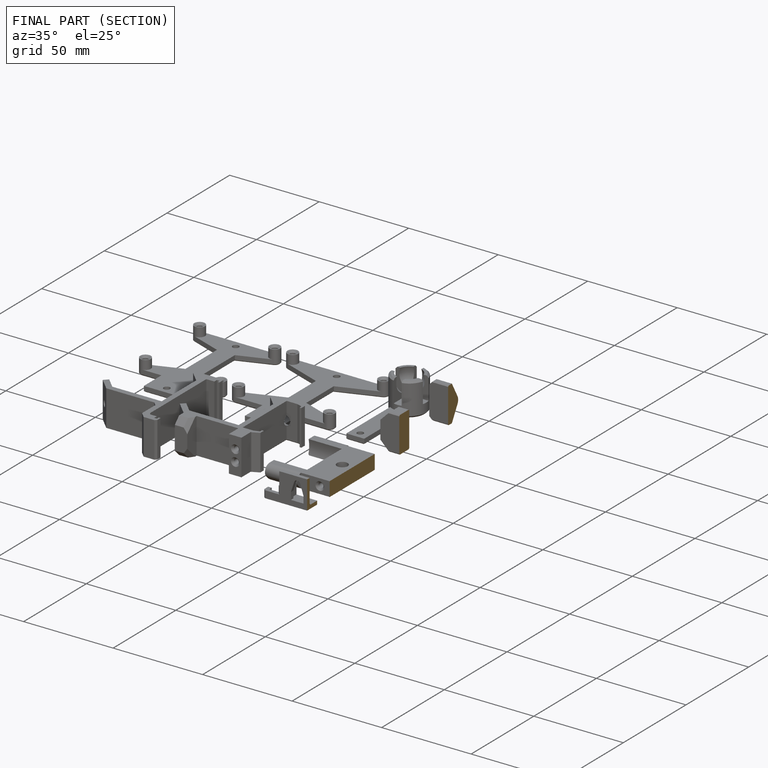
[diagram: finished part — half-section view (interior)]
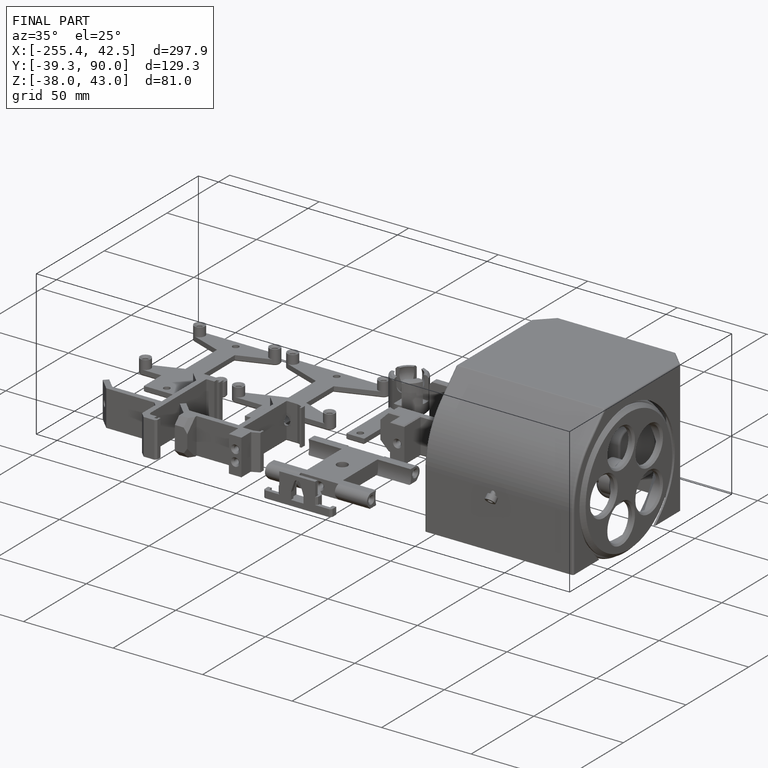
[diagram: finished part — iso view with bounding-box wireframe]
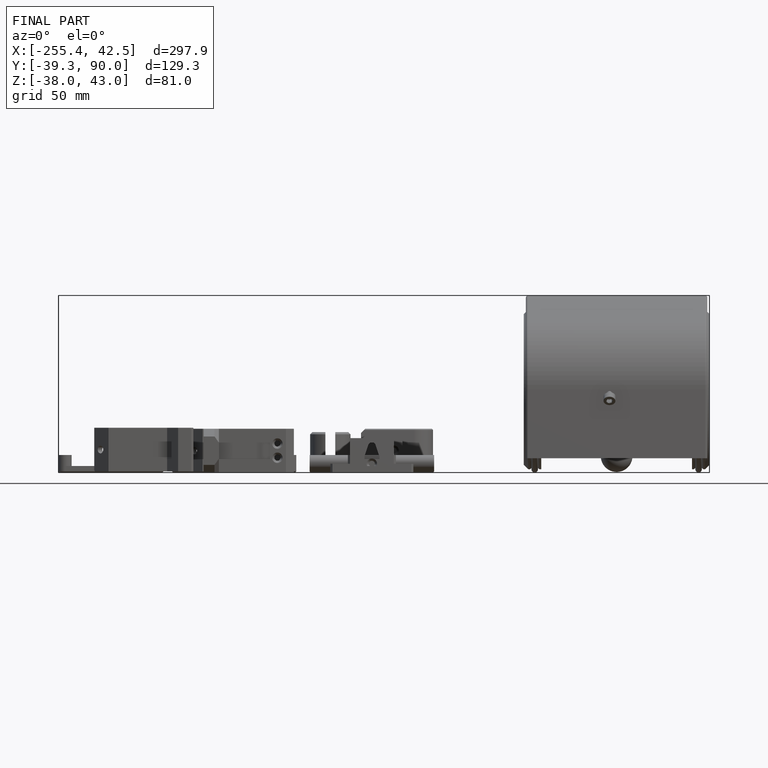
[diagram: finished part — front view with bounding-box wireframe]
